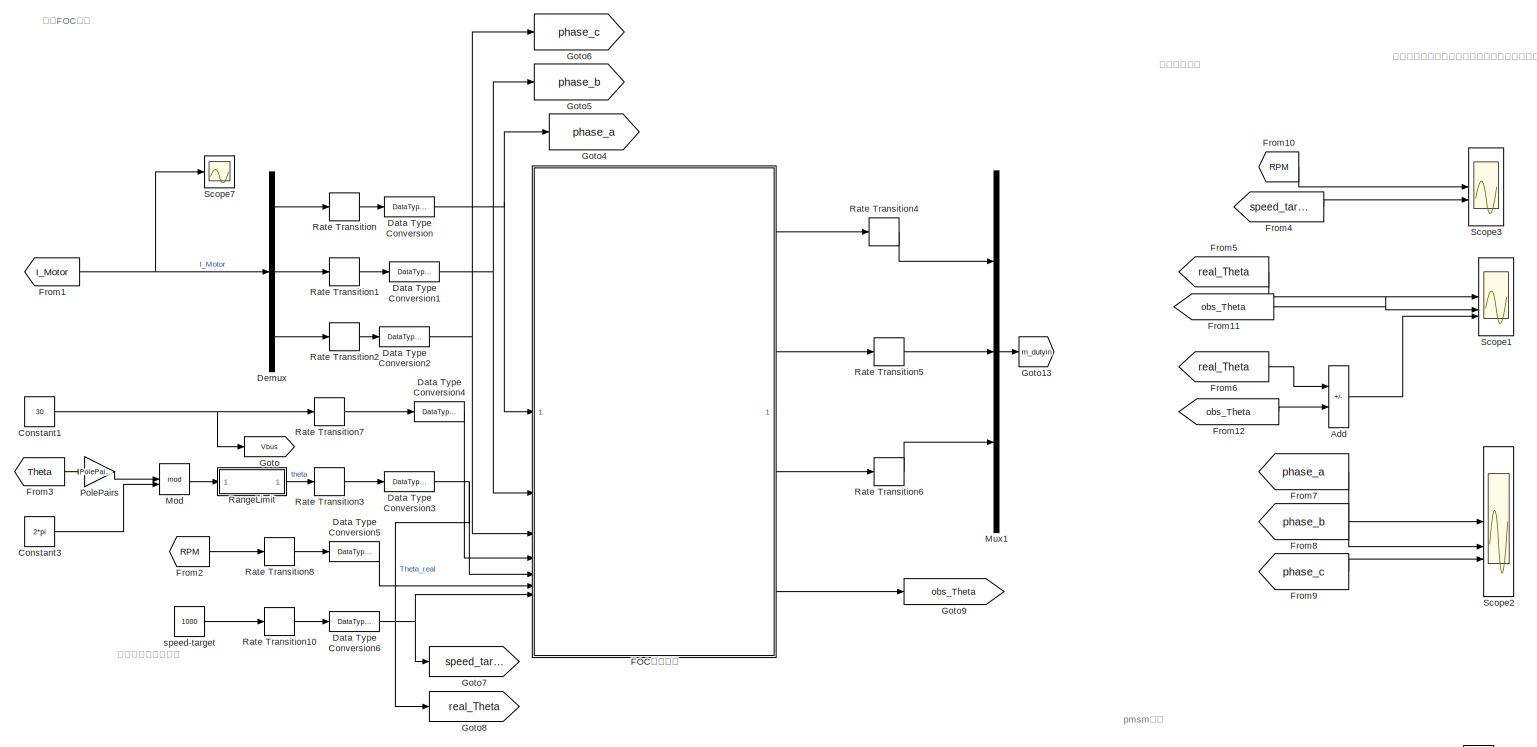
[diagram: root canvas - part 1/3, middle left region]
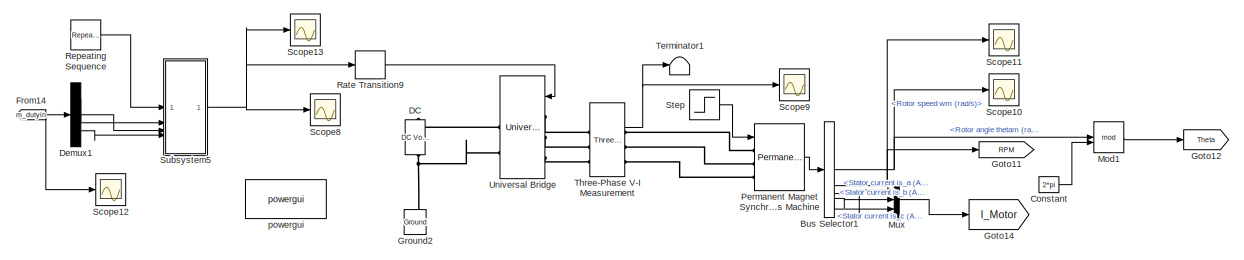
[diagram: root canvas - part 2/3, bottom right region]
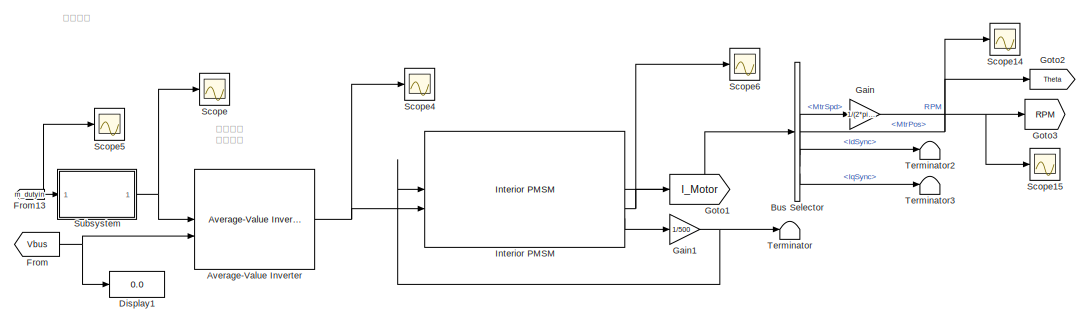
[diagram: root canvas - part 3/3, bottom left region]
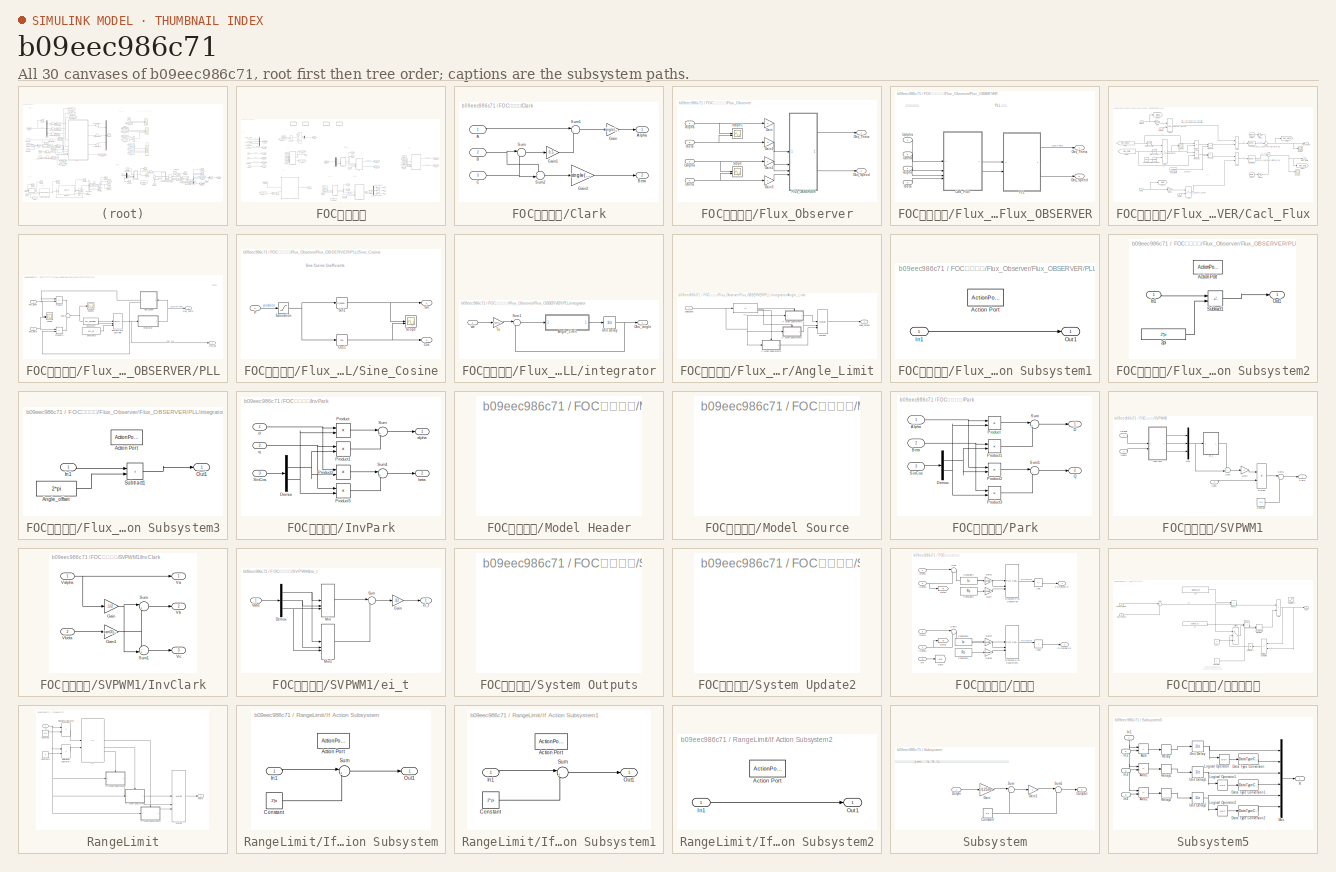
[diagram: thumbnail index - all 30 canvases of the model, root first then tree order]
MODEL slx_b09eec986c71
KIND model
CONFIG AbsTol = auto
CONFIG EnableMultiTasking = off
CONFIG FixedStep = Fixed_Step_Size
CONFIG InitFcn = Flux_Nonsensor_data_new\n\n
CONFIG MaxStep = auto
CONFIG MinStep = auto
CONFIG RelTol = 1e-3
CONFIG SampleTimeConstraint = Unconstrained
CONFIG SolverName = FixedStepAuto
CONFIG StartTime = 0.0
CONFIG StopTime = 10.0
BLOCK [Sum] Add
  IconShape = rectangular
  Inputs = +-
  OutDataTypeStr = single
BLOCK [Reference] Average-Value Inverter  REF=mcbplantlib/Average-Value Inverter
  Commented = on
  SourceBlock = mcbplantlib/Average-Value Inverter
  SourceType = Average Value Inverter
BLOCK [BusSelector] Bus Selector
  Commented = on
  OutputSignals = MtrPos,MtrSpd,IdSync,IqSync
BLOCK [BusSelector] Bus Selector1
  OutputSignals = Rotor angle thetam (rad),Rotor speed wm (rad/s),Stator current is_a (A),Stator current is_b (A),Stator current is_c (A)
BLOCK [Constant] Constant
  Value = 2*pi
BLOCK [Constant] Constant1
  SampleTime = TsBSP
  Value = 30
BLOCK [Constant] Constant3  
  SampleTime = TsBSP
  Value = 2*pi
BLOCK [Reference] DC   REF=spsDCVoltageSourceLib/DC Voltage Source
  LibrarySourceBlock = sps_lib/Sources/DC Voltage Source
  NameLocation = right
  SourceBlock = spsDCVoltageSourceLib/DC Voltage Source
  SourceType = DC Voltage Source
BLOCK [DataTypeConversion] Data Type Conversion
  OutDataTypeStr = single
  RndMeth = Floor
  SaturateOnIntegerOverflow = off
BLOCK [DataTypeConversion] Data Type Conversion1
  OutDataTypeStr = single
  RndMeth = Floor
  SaturateOnIntegerOverflow = off
BLOCK [DataTypeConversion] Data Type Conversion2
  OutDataTypeStr = single
  RndMeth = Floor
  SaturateOnIntegerOverflow = off
BLOCK [DataTypeConversion] Data Type Conversion3
  OutDataTypeStr = single
  RndMeth = Floor
  SaturateOnIntegerOverflow = off
BLOCK [DataTypeConversion] Data Type Conversion4
  OutDataTypeStr = single
  RndMeth = Floor
  SaturateOnIntegerOverflow = off
BLOCK [DataTypeConversion] Data Type Conversion5
  OutDataTypeStr = single
  RndMeth = Floor
  SaturateOnIntegerOverflow = off
BLOCK [DataTypeConversion] Data Type Conversion6
  OutDataTypeStr = single
  RndMeth = Floor
  SaturateOnIntegerOverflow = off
BLOCK [Demux] Demux
  Outputs = 3
BLOCK [Demux] Demux1
  Outputs = 3
BLOCK [Display] Display1
  Commented = on
  Decimation = 1
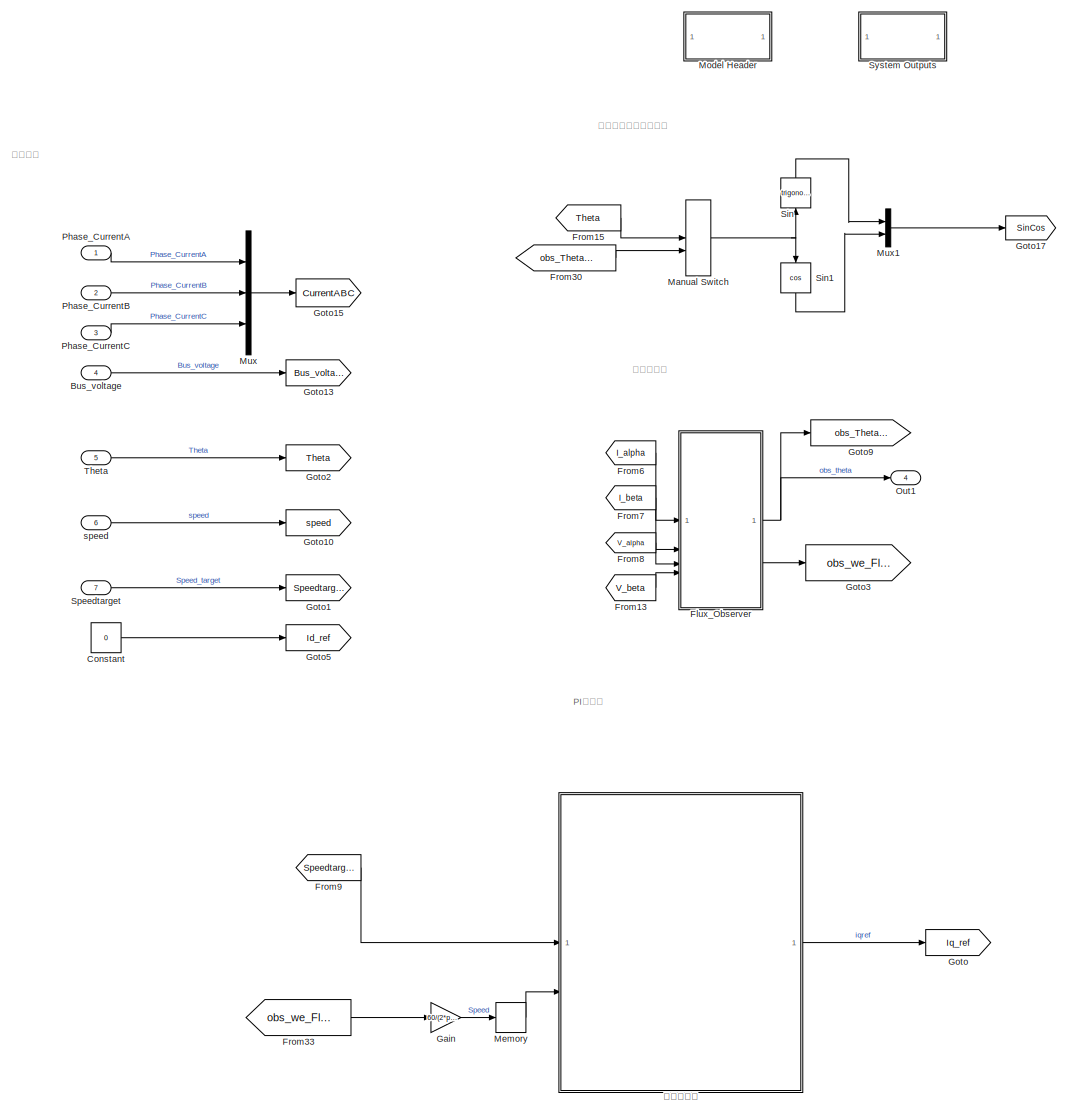
[diagram: FOC电机控制 - part 1/3, left side, full height]
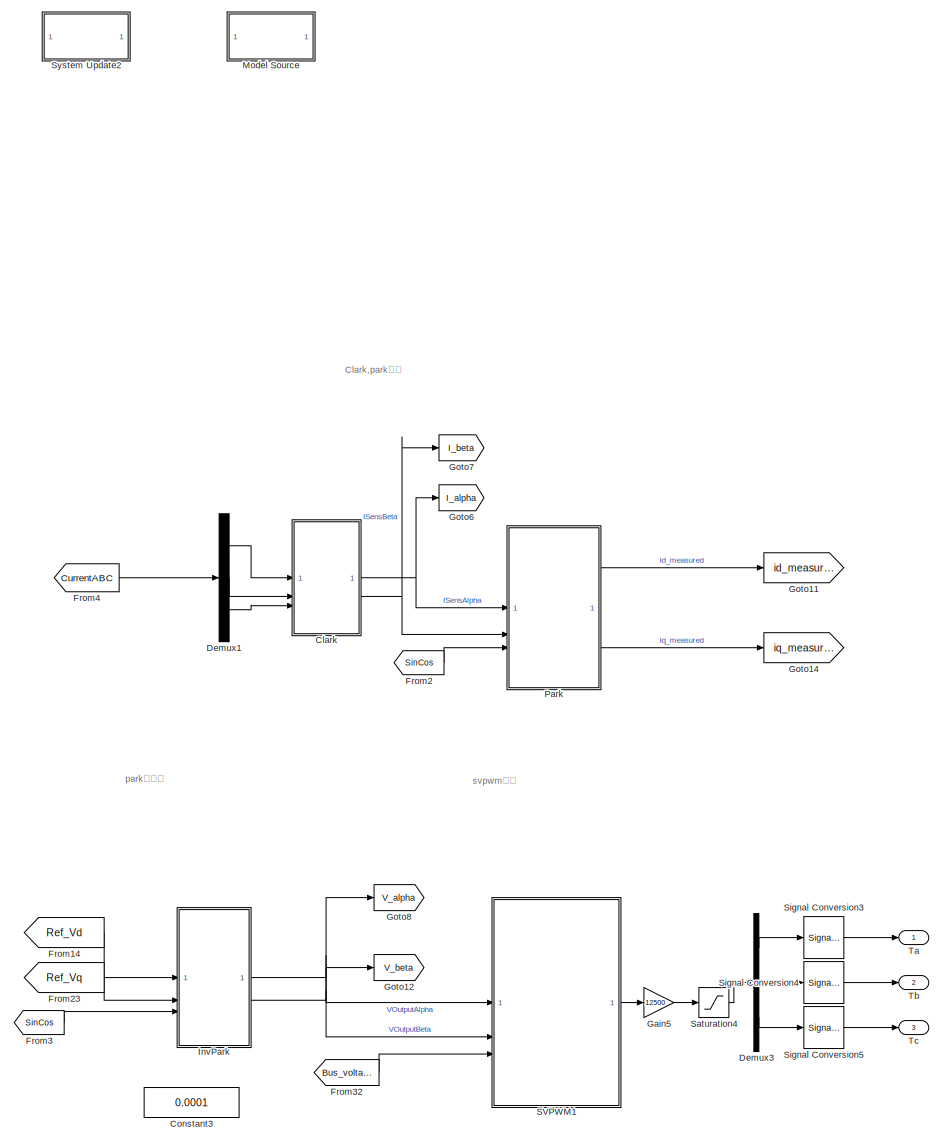
[diagram: FOC电机控制 - part 2/3, center side, full height]
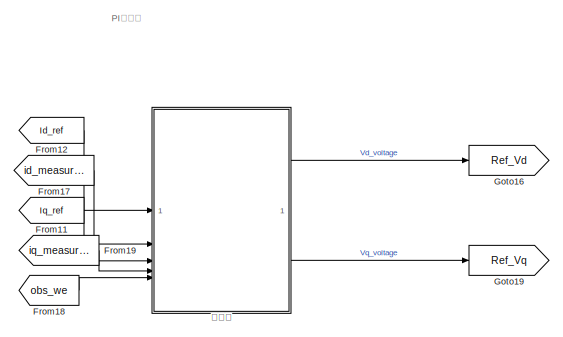
[diagram: FOC电机控制 - part 3/3, middle right region]
BLOCK [SubSystem] FOC电机控制
  SystemSampleTime = TsFOC
  TreatAsAtomicUnit = on
BLOCK [Inport] FOC电机控制/Bus_voltage
  Port = 4
BLOCK [SubSystem] FOC电机控制/Clark
  NameLocation = top
  RTWFcnNameOpts = Use subsystem name
  RTWSystemCode = Inline
  TreatAsAtomicUnit = on
BLOCK [Inport] FOC电机控制/Clark/A
  OutDataTypeStr = single
BLOCK [Outport] FOC电机控制/Clark/Alpha
  OutDataTypeStr = single
BLOCK [Inport] FOC电机控制/Clark/B
  OutDataTypeStr = single
  Port = 2
BLOCK [Outport] FOC电机控制/Clark/Beta
  OutDataTypeStr = single
  Port = 2
BLOCK [Inport] FOC电机控制/Clark/C
  OutDataTypeStr = single
  Port = 3
BLOCK [Gain] FOC电机控制/Clark/Gain
  Gain = single(2/3)
  OutDataTypeStr = single
BLOCK [Gain] FOC电机控制/Clark/Gain1
  Gain = 0.5
  OutDataTypeStr = single
BLOCK [Gain] FOC电机控制/Clark/Gain2
  Gain = single(sqrt(3)/3)
  OutDataTypeStr = single
BLOCK [Sum] FOC电机控制/Clark/Sum
  Inputs = |++
  OutDataTypeStr = single
BLOCK [Sum] FOC电机控制/Clark/Sum1
  Inputs = |+-
  OutDataTypeStr = single
BLOCK [Sum] FOC电机控制/Clark/Sum2
  Inputs = +-|
  OutDataTypeStr = single
BLOCK [Constant] FOC电机控制/Constant
  OutDataTypeStr = single
  Value = 0
BLOCK [Constant] FOC电机控制/Constant3
  OutDataTypeStr = single
  Value = 0.0001
BLOCK [Demux] FOC电机控制/Demux1
  Outputs = 3
BLOCK [Demux] FOC电机控制/Demux3
  Outputs = 3
BLOCK [SubSystem] FOC电机控制/Flux_Observer
  RTWSystemCode = Reusable function
BLOCK [SubSystem] FOC电机控制/Flux_Observer/Flux_OBSERVER
  RTWSystemCode = Reusable function
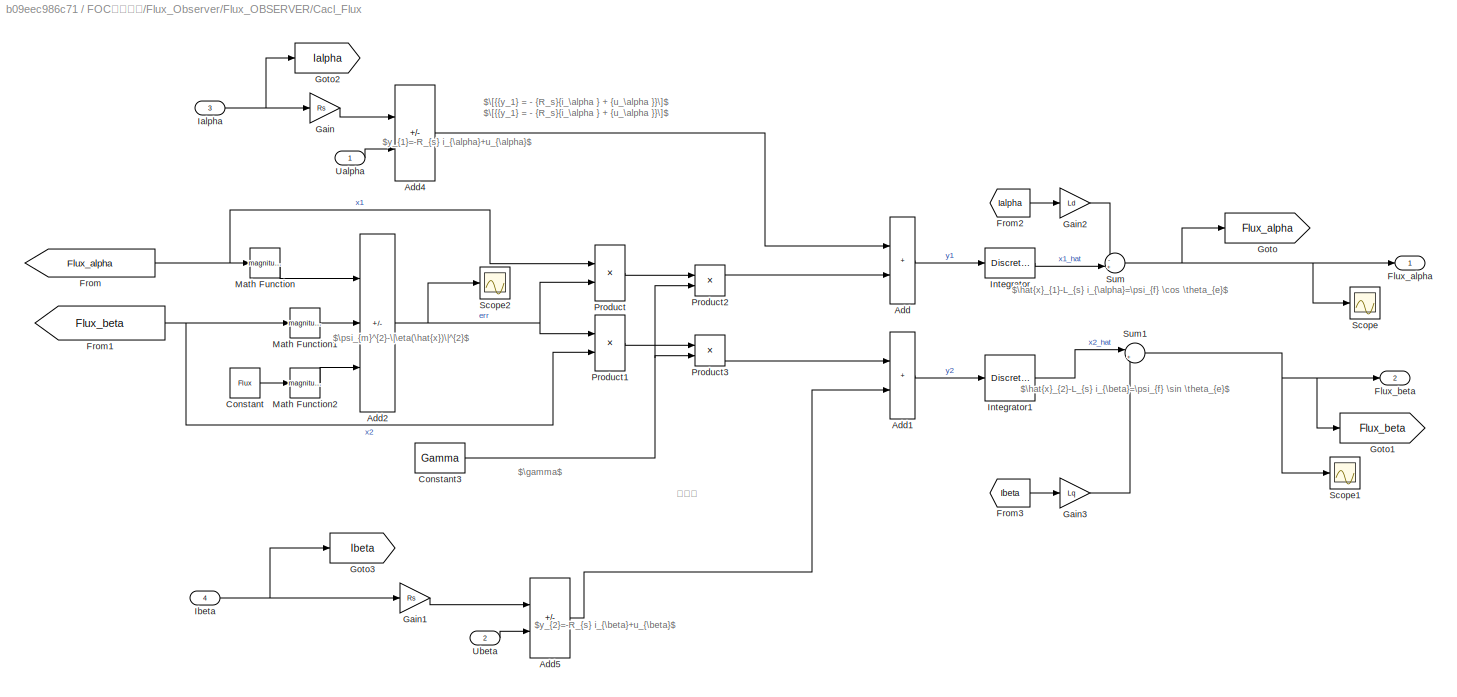
BLOCK [SubSystem] FOC电机控制/Flux_Observer/Flux_OBSERVER/Cacl_Flux
BLOCK [Sum] FOC电机控制/Flux_Observer/Flux_OBSERVER/Cacl_Flux/Add
  IconShape = rectangular
  OutDataTypeStr = single
BLOCK [Sum] FOC电机控制/Flux_Observer/Flux_OBSERVER/Cacl_Flux/Add1
  IconShape = rectangular
  OutDataTypeStr = single
BLOCK [Sum] FOC电机控制/Flux_Observer/Flux_OBSERVER/Cacl_Flux/Add2
  IconShape = rectangular
  Inputs = --+
  OutDataTypeStr = single
BLOCK [Sum] FOC电机控制/Flux_Observer/Flux_OBSERVER/Cacl_Flux/Add4
  IconShape = rectangular
  Inputs = -+
  OutDataTypeStr = single
BLOCK [Sum] FOC电机控制/Flux_Observer/Flux_OBSERVER/Cacl_Flux/Add5
  IconShape = rectangular
  Inputs = -+
  OutDataTypeStr = single
BLOCK [Constant] FOC电机控制/Flux_Observer/Flux_OBSERVER/Cacl_Flux/Constant
  OutDataTypeStr = single
  Value = Flux
BLOCK [Constant] FOC电机控制/Flux_Observer/Flux_OBSERVER/Cacl_Flux/Constant3
  OutDataTypeStr = single
  Value = Gamma
BLOCK [Outport] FOC电机控制/Flux_Observer/Flux_OBSERVER/Cacl_Flux/Flux_alpha
  OutDataTypeStr = single
BLOCK [Outport] FOC电机控制/Flux_Observer/Flux_OBSERVER/Cacl_Flux/Flux_beta
  OutDataTypeStr = single
  Port = 2
BLOCK [From] FOC电机控制/Flux_Observer/Flux_OBSERVER/Cacl_Flux/From
  GotoTag = Flux_alpha
BLOCK [From] FOC电机控制/Flux_Observer/Flux_OBSERVER/Cacl_Flux/From1
  GotoTag = Flux_beta
BLOCK [From] FOC电机控制/Flux_Observer/Flux_OBSERVER/Cacl_Flux/From2
  GotoTag = Ialpha
BLOCK [From] FOC电机控制/Flux_Observer/Flux_OBSERVER/Cacl_Flux/From3
  GotoTag = Ibeta
BLOCK [Gain] FOC电机控制/Flux_Observer/Flux_OBSERVER/Cacl_Flux/Gain
  Gain = Rs
BLOCK [Gain] FOC电机控制/Flux_Observer/Flux_OBSERVER/Cacl_Flux/Gain1
  Gain = Rs
BLOCK [Gain] FOC电机控制/Flux_Observer/Flux_OBSERVER/Cacl_Flux/Gain2
  Gain = Ld
  OutDataTypeStr = single
BLOCK [Gain] FOC电机控制/Flux_Observer/Flux_OBSERVER/Cacl_Flux/Gain3
  Gain = Lq
  OutDataTypeStr = single
BLOCK [Goto] FOC电机控制/Flux_Observer/Flux_OBSERVER/Cacl_Flux/Goto
  GotoTag = Flux_alpha
BLOCK [Goto] FOC电机控制/Flux_Observer/Flux_OBSERVER/Cacl_Flux/Goto1
  GotoTag = Flux_beta
BLOCK [Goto] FOC电机控制/Flux_Observer/Flux_OBSERVER/Cacl_Flux/Goto2
  GotoTag = Ialpha
BLOCK [Goto] FOC电机控制/Flux_Observer/Flux_OBSERVER/Cacl_Flux/Goto3
  GotoTag = Ibeta
BLOCK [Inport] FOC电机控制/Flux_Observer/Flux_OBSERVER/Cacl_Flux/Ialpha
  OutDataTypeStr = single
  Port = 3
BLOCK [Inport] FOC电机控制/Flux_Observer/Flux_OBSERVER/Cacl_Flux/Ibeta
  OutDataTypeStr = single
  Port = 4
BLOCK [DiscreteIntegrator] FOC电机控制/Flux_Observer/Flux_OBSERVER/Cacl_Flux/Integrator
  ICPrevOutput = DiscIntNeverNeededParam
  ICPrevScaledInput = DiscIntNeverNeededParam
  OutDataTypeStr = single
  SampleTime = -1
BLOCK [DiscreteIntegrator] FOC电机控制/Flux_Observer/Flux_OBSERVER/Cacl_Flux/Integrator1
  ICPrevOutput = DiscIntNeverNeededParam
  ICPrevScaledInput = DiscIntNeverNeededParam
  OutDataTypeStr = single
  SampleTime = -1
BLOCK [Math] FOC电机控制/Flux_Observer/Flux_OBSERVER/Cacl_Flux/Math Function
  Operator = magnitude^2
  OutDataTypeStr = single
BLOCK [Math] FOC电机控制/Flux_Observer/Flux_OBSERVER/Cacl_Flux/Math Function1
  Operator = magnitude^2
  OutDataTypeStr = single
BLOCK [Math] FOC电机控制/Flux_Observer/Flux_OBSERVER/Cacl_Flux/Math Function2
  Operator = magnitude^2
  OutDataTypeStr = single
BLOCK [Product] FOC电机控制/Flux_Observer/Flux_OBSERVER/Cacl_Flux/Product
  OutDataTypeStr = single
BLOCK [Product] FOC电机控制/Flux_Observer/Flux_OBSERVER/Cacl_Flux/Product1
  OutDataTypeStr = single
BLOCK [Product] FOC电机控制/Flux_Observer/Flux_OBSERVER/Cacl_Flux/Product2
  OutDataTypeStr = single
BLOCK [Product] FOC电机控制/Flux_Observer/Flux_OBSERVER/Cacl_Flux/Product3
  OutDataTypeStr = single
BLOCK [Scope] FOC电机控制/Flux_Observer/Flux_OBSERVER/Cacl_Flux/Scope
  Floating = off
  NumInputPorts = 1
  ScopeSpecificationString = Simulink.scopes.TimeScopeBlockCfg('CurrentConfiguration', extmgr.ConfigurationSet(extmgr.Configuration('Core','General UI',true),extmgr.Configuration('Core','Source UI',true),extmgr.Configuration('Sources','WiredSimulink',true,'DataLoggingVariableName','ScopeData1','DataLoggingSaveFormat','Array','DataLoggingLimitDataPoints',true,'DataLoggingDecimation','1'),extmgr.Configuration('Visuals','Time Do...<+1756ch>
BLOCK [Scope] FOC电机控制/Flux_Observer/Flux_OBSERVER/Cacl_Flux/Scope1
  Floating = off
  NumInputPorts = 1
  ScopeSpecificationString = Simulink.scopes.TimeScopeBlockCfg('CurrentConfiguration', extmgr.ConfigurationSet(extmgr.Configuration('Core','General UI',true),extmgr.Configuration('Core','Source UI',true),extmgr.Configuration('Sources','WiredSimulink',true,'DataLoggingVariableName','ScopeData2','DataLoggingSaveFormat','Array','DataLoggingLimitDataPoints',true,'DataLoggingDecimation','1'),extmgr.Configuration('Visuals','Time Do...<+1748ch>
BLOCK [Scope] FOC电机控制/Flux_Observer/Flux_OBSERVER/Cacl_Flux/Scope2
  Floating = off
  NumInputPorts = 1
  ScopeSpecificationString = Simulink.scopes.TimeScopeBlockCfg('CurrentConfiguration', extmgr.ConfigurationSet(extmgr.Configuration('Core','General UI',true),extmgr.Configuration('Core','Source UI',true),extmgr.Configuration('Sources','WiredSimulink',true,'DataLoggingVariableName','ScopeData1'),extmgr.Configuration('Visuals','Time Domain',true,'SerializedDisplays',{struct('MinYLimReal','-0.00118','MaxYLimReal','0.00051','YLab...<+1537ch>
BLOCK [Sum] FOC电机控制/Flux_Observer/Flux_OBSERVER/Cacl_Flux/Sum
  Inputs = -+|
  OutDataTypeStr = single
BLOCK [Sum] FOC电机控制/Flux_Observer/Flux_OBSERVER/Cacl_Flux/Sum1
  Inputs = |+-
  OutDataTypeStr = single
BLOCK [Inport] FOC电机控制/Flux_Observer/Flux_OBSERVER/Cacl_Flux/Ualpha
  OutDataTypeStr = single
BLOCK [Inport] FOC电机控制/Flux_Observer/Flux_OBSERVER/Cacl_Flux/Ubeta
  OutDataTypeStr = single
  Port = 2
BLOCK [Inport] FOC电机控制/Flux_Observer/Flux_OBSERVER/Ialpha
  OutDataTypeStr = single
BLOCK [Inport] FOC电机控制/Flux_Observer/Flux_OBSERVER/Ibeta
  OutDataTypeStr = single
  Port = 2
BLOCK [Outport] FOC电机控制/Flux_Observer/Flux_OBSERVER/Obs_Speed
  Port = 2
BLOCK [Outport] FOC电机控制/Flux_Observer/Flux_OBSERVER/Obs_Theta
BLOCK [SubSystem] FOC电机控制/Flux_Observer/Flux_OBSERVER/PLL
BLOCK [Constant] FOC电机控制/Flux_Observer/Flux_OBSERVER/PLL/Constant2
  OutDataTypeStr = single
  Value = pll_omega
BLOCK [Constant] FOC电机控制/Flux_Observer/Flux_OBSERVER/PLL/Constant3
  OutDataTypeStr = single
  Value = pll_xi
BLOCK [Reference] FOC电机控制/Flux_Observer/Flux_OBSERVER/PLL/Discrete PID Controller  REF=slpidlib/PID Controller
  SourceBlock = slpidlib/PID Controller
  SourceType = PID 1dof
BLOCK [Inport] FOC电机控制/Flux_Observer/Flux_OBSERVER/PLL/Flux_alpha
  OutDataTypeStr = single
BLOCK [Inport] FOC电机控制/Flux_Observer/Flux_OBSERVER/PLL/Flux_beta
  OutDataTypeStr = single
  Port = 2
BLOCK [Outport] FOC电机控制/Flux_Observer/Flux_OBSERVER/PLL/Obs_Theta
  OutDataTypeStr = single
BLOCK [Outport] FOC电机控制/Flux_Observer/Flux_OBSERVER/PLL/Obs_we
  OutDataTypeStr = single
  Port = 2
BLOCK [Product] FOC电机控制/Flux_Observer/Flux_OBSERVER/PLL/Product
  OutDataTypeStr = single
BLOCK [Product] FOC电机控制/Flux_Observer/Flux_OBSERVER/PLL/Product1
  OutDataTypeStr = single
BLOCK [Scope] FOC电机控制/Flux_Observer/Flux_OBSERVER/PLL/Scope
  Floating = off
  NumInputPorts = 2
  ScopeSpecificationString = Simulink.scopes.TimeScopeBlockCfg('CurrentConfiguration', extmgr.ConfigurationSet(extmgr.Configuration('Core','General UI',true),extmgr.Configuration('Core','Source UI',true),extmgr.Configuration('Sources','WiredSimulink',true,'DataLoggingVariableName','ScopeData1'),extmgr.Configuration('Visuals','Time Domain',true,'SerializedDisplays',{struct('MinYLimReal','-0.04331','MaxYLimReal','0.02527','YLab...<+1596ch>
BLOCK [Scope] FOC电机控制/Flux_Observer/Flux_OBSERVER/PLL/Scope1
  Floating = off
  NumInputPorts = 1
  ScopeSpecificationString = Simulink.scopes.TimeScopeBlockCfg('CurrentConfiguration', extmgr.ConfigurationSet(extmgr.Configuration('Core','General UI',true),extmgr.Configuration('Core','Source UI',true),extmgr.Configuration('Sources','WiredSimulink',true,'DataLoggingVariableName','ScopeData1'),extmgr.Configuration('Visuals','Time Domain',true,'SerializedDisplays',{struct('MinYLimReal','-0.01591','MaxYLimReal','0.0159','YLabe...<+1575ch>
BLOCK [SubSystem] FOC电机控制/Flux_Observer/Flux_OBSERVER/PLL/Sine_Cosine
  RTWFcnNameOpts = Use subsystem name
  RTWSystemCode = Nonreusable function
  TreatAsAtomicUnit = on
BLOCK [Outport] FOC电机控制/Flux_Observer/Flux_OBSERVER/PLL/Sine_Cosine/Cos
  Port = 2
  VectorParamsAs1DForOutWhenUnconnected = off
BLOCK [Trigonometry] FOC电机控制/Flux_Observer/Flux_OBSERVER/PLL/Sine_Cosine/Cos1
  Operator = cos
BLOCK [Inport] FOC电机控制/Flux_Observer/Flux_OBSERVER/PLL/Sine_Cosine/P
  OutDataTypeStr = single
BLOCK [Saturate] FOC电机控制/Flux_Observer/Flux_OBSERVER/PLL/Sine_Cosine/Saturation
  LowerLimit = 0+0.001
  OutDataTypeStr = single
  UpperLimit = 2*pi-0.001
BLOCK [Scope] FOC电机控制/Flux_Observer/Flux_OBSERVER/PLL/Sine_Cosine/Scope
  Floating = off
  NumInputPorts = 2
  ScopeSpecificationString = Simulink.scopes.TimeScopeBlockCfg('CurrentConfiguration', extmgr.ConfigurationSet(extmgr.Configuration('Core','General UI',true),extmgr.Configuration('Core','Source UI',true),extmgr.Configuration('Sources','WiredSimulink',true,'DataLoggingVariableName','ScopeData3'),extmgr.Configuration('Visuals','Time Domain',true,'SerializedDisplays',{struct('MinYLimReal','-1.25','MaxYLimReal','1.25','YLabelReal...<+1425ch>
BLOCK [Outport] FOC电机控制/Flux_Observer/Flux_OBSERVER/PLL/Sine_Cosine/Sin
  VectorParamsAs1DForOutWhenUnconnected = off
BLOCK [Trigonometry] FOC电机控制/Flux_Observer/Flux_OBSERVER/PLL/Sine_Cosine/Sin1
BLOCK [Sum] FOC电机控制/Flux_Observer/Flux_OBSERVER/PLL/Sum
  Inputs = -|+
  OutDataTypeStr = single
BLOCK [SubSystem] FOC电机控制/Flux_Observer/Flux_OBSERVER/PLL/integrator
BLOCK [SubSystem] FOC电机控制/Flux_Observer/Flux_OBSERVER/PLL/integrator/Angle_Limit
BLOCK [Inport] FOC电机控制/Flux_Observer/Flux_OBSERVER/PLL/integrator/Angle_Limit/Angle_input
BLOCK [Outport] FOC电机控制/Flux_Observer/Flux_OBSERVER/PLL/integrator/Angle_Limit/Angle_output
BLOCK [SubSystem] FOC电机控制/Flux_Observer/Flux_OBSERVER/PLL/integrator/Angle_Limit/If Action Subsystem1
  TreatAsAtomicUnit = on
BLOCK [ActionPort] FOC电机控制/Flux_Observer/Flux_OBSERVER/PLL/integrator/Angle_Limit/If Action Subsystem1/Action Port
  ActionPortLabel = else
BLOCK [Inport] FOC电机控制/Flux_Observer/Flux_OBSERVER/PLL/integrator/Angle_Limit/If Action Subsystem1/In1
BLOCK [Outport] FOC电机控制/Flux_Observer/Flux_OBSERVER/PLL/integrator/Angle_Limit/If Action Subsystem1/Out1
BLOCK [SubSystem] FOC电机控制/Flux_Observer/Flux_OBSERVER/PLL/integrator/Angle_Limit/If Action Subsystem2
  TreatAsAtomicUnit = on
BLOCK [Constant] FOC电机控制/Flux_Observer/Flux_OBSERVER/PLL/integrator/Angle_Limit/If Action Subsystem2/2pi
  OutDataTypeStr = single
  Value = 2*pi
BLOCK [ActionPort] FOC电机控制/Flux_Observer/Flux_OBSERVER/PLL/integrator/Angle_Limit/If Action Subsystem2/Action Port
  ActionPortLabel = if(u1 > 6.283185307)
BLOCK [Inport] FOC电机控制/Flux_Observer/Flux_OBSERVER/PLL/integrator/Angle_Limit/If Action Subsystem2/In1
BLOCK [Outport] FOC电机控制/Flux_Observer/Flux_OBSERVER/PLL/integrator/Angle_Limit/If Action Subsystem2/Out1
BLOCK [Sum] FOC电机控制/Flux_Observer/Flux_OBSERVER/PLL/integrator/Angle_Limit/If Action Subsystem2/Subtract1
  IconShape = rectangular
  Inputs = +-
  OutDataTypeStr = single
BLOCK [SubSystem] FOC电机控制/Flux_Observer/Flux_OBSERVER/PLL/integrator/Angle_Limit/If Action Subsystem3
  TreatAsAtomicUnit = on
BLOCK [ActionPort] FOC电机控制/Flux_Observer/Flux_OBSERVER/PLL/integrator/Angle_Limit/If Action Subsystem3/Action Port
  ActionPortLabel = elseif(u1<0)
BLOCK [Constant] FOC电机控制/Flux_Observer/Flux_OBSERVER/PLL/integrator/Angle_Limit/If Action Subsystem3/Angle_offset
  OutDataTypeStr = single
  Value = 2*pi
BLOCK [Inport] FOC电机控制/Flux_Observer/Flux_OBSERVER/PLL/integrator/Angle_Limit/If Action Subsystem3/In1
BLOCK [Outport] FOC电机控制/Flux_Observer/Flux_OBSERVER/PLL/integrator/Angle_Limit/If Action Subsystem3/Out1
BLOCK [Sum] FOC电机控制/Flux_Observer/Flux_OBSERVER/PLL/integrator/Angle_Limit/If Action Subsystem3/Subtract1
  IconShape = rectangular
BLOCK [If] FOC电机控制/Flux_Observer/Flux_OBSERVER/PLL/integrator/Angle_Limit/If1
  ElseIfExpressions = u1<0
  IfExpression = u1 > 6.283185307
BLOCK [Merge] FOC电机控制/Flux_Observer/Flux_OBSERVER/PLL/integrator/Angle_Limit/Merge1
  Inputs = 3
BLOCK [Outport] FOC电机控制/Flux_Observer/Flux_OBSERVER/PLL/integrator/Obs_angle
  OutDataTypeStr = single
BLOCK [Sum] FOC电机控制/Flux_Observer/Flux_OBSERVER/PLL/integrator/Sum1
  Inputs = |++
  OutDataTypeStr = single
BLOCK [Gain] FOC电机控制/Flux_Observer/Flux_OBSERVER/PLL/integrator/Ts
  Gain = TsFOC
  OutDataTypeStr = single
BLOCK [UnitDelay] FOC电机控制/Flux_Observer/Flux_OBSERVER/PLL/integrator/Unit Delay
  HasFrameUpgradeWarning = on
  SampleTime = -1
BLOCK [Inport] FOC电机控制/Flux_Observer/Flux_OBSERVER/PLL/integrator/we
  OutDataTypeStr = single
BLOCK [Inport] FOC电机控制/Flux_Observer/Flux_OBSERVER/Ualpha
  OutDataTypeStr = single
  Port = 3
BLOCK [Inport] FOC电机控制/Flux_Observer/Flux_OBSERVER/Ubeta
  OutDataTypeStr = single
  Port = 4
BLOCK [Gain] FOC电机控制/Flux_Observer/Gain
BLOCK [Gain] FOC电机控制/Flux_Observer/Gain1
BLOCK [Gain] FOC电机控制/Flux_Observer/Gain2
BLOCK [Gain] FOC电机控制/Flux_Observer/Gain3
BLOCK [Inport] FOC电机控制/Flux_Observer/Ialpha
  OutDataTypeStr = single
BLOCK [Inport] FOC电机控制/Flux_Observer/Ibeta
  OutDataTypeStr = single
  Port = 2
BLOCK [Outport] FOC电机控制/Flux_Observer/Obs_Speed
  Port = 2
BLOCK [Outport] FOC电机控制/Flux_Observer/Obs_Theta
BLOCK [Scope] FOC电机控制/Flux_Observer/Scope
  Floating = off
  NumInputPorts = 2
  ScopeSpecificationString = Simulink.scopes.TimeScopeBlockCfg('CurrentConfiguration', extmgr.ConfigurationSet(extmgr.Configuration('Core','General UI',true),extmgr.Configuration('Core','Source UI',true),extmgr.Configuration('Sources','WiredSimulink',true,'DataLoggingVariableName','ScopeData2'),extmgr.Configuration('Visuals','Time Domain',true,'SerializedDisplays',{struct('MinYLimReal','-7.41364','MaxYLimReal','7.55906','YLab...<+1533ch>
BLOCK [Scope] FOC电机控制/Flux_Observer/Scope1
  Floating = off
  NumInputPorts = 2
  ScopeSpecificationString = Simulink.scopes.TimeScopeBlockCfg('CurrentConfiguration', extmgr.ConfigurationSet(extmgr.Configuration('Core','General UI',true),extmgr.Configuration('Core','Source UI',true),extmgr.Configuration('Sources','WiredSimulink',true,'DataLoggingVariableName','ScopeData3'),extmgr.Configuration('Visuals','Time Domain',true,'SerializedDisplays',{struct('MinYLimReal','-16.75847','MaxYLimReal','18.10642','YL...<+1566ch>
BLOCK [Inport] FOC电机控制/Flux_Observer/Ualpha
  OutDataTypeStr = single
  Port = 3
BLOCK [Inport] FOC电机控制/Flux_Observer/Ubeta
  OutDataTypeStr = single
  Port = 4
BLOCK [From] FOC电机控制/From11
  GotoTag = Iq_ref
BLOCK [From] FOC电机控制/From12
  GotoTag = Id_ref
BLOCK [From] FOC电机控制/From13
  GotoTag = V_beta
BLOCK [From] FOC电机控制/From14
  GotoTag = Ref_Vd
BLOCK [From] FOC电机控制/From15
  GotoTag = Theta
BLOCK [From] FOC电机控制/From17
  GotoTag = id_measured
BLOCK [From] FOC电机控制/From18
  GotoTag = obs_we
BLOCK [From] FOC电机控制/From19
  GotoTag = iq_measured
BLOCK [From] FOC电机控制/From2
  GotoTag = SinCos
BLOCK [From] FOC电机控制/From23
  GotoTag = Ref_Vq
BLOCK [From] FOC电机控制/From3
  GotoTag = SinCos
BLOCK [From] FOC电机控制/From30
  GotoTag = obs_Theta_Flux
BLOCK [From] FOC电机控制/From32
  GotoTag = Bus_voltage
BLOCK [From] FOC电机控制/From33
  GotoTag = obs_we_Flux
BLOCK [From] FOC电机控制/From4
  GotoTag = CurrentABC
BLOCK [From] FOC电机控制/From6
  GotoTag = I_alpha
BLOCK [From] FOC电机控制/From7
  GotoTag = I_beta
BLOCK [From] FOC电机控制/From8
  GotoTag = V_alpha
BLOCK [From] FOC电机控制/From9
  GotoTag = Speedtarget
BLOCK [Gain] FOC电机控制/Gain
  Gain = 60/(2*pi)/PolePairs
BLOCK [Gain] FOC电机控制/Gain5
  Gain = 12500
BLOCK [Goto] FOC电机控制/Goto
  GotoTag = Iq_ref
BLOCK [Goto] FOC电机控制/Goto1
  GotoTag = Speedtarget
BLOCK [Goto] FOC电机控制/Goto10
  GotoTag = speed
BLOCK [Goto] FOC电机控制/Goto11
  GotoTag = id_measured
BLOCK [Goto] FOC电机控制/Goto12
  GotoTag = V_beta
BLOCK [Goto] FOC电机控制/Goto13
  GotoTag = Bus_voltage
BLOCK [Goto] FOC电机控制/Goto14
  GotoTag = iq_measured
BLOCK [Goto] FOC电机控制/Goto15
  GotoTag = CurrentABC
BLOCK [Goto] FOC电机控制/Goto16
  GotoTag = Ref_Vd
BLOCK [Goto] FOC电机控制/Goto17
  GotoTag = SinCos
BLOCK [Goto] FOC电机控制/Goto19
  GotoTag = Ref_Vq
BLOCK [Goto] FOC电机控制/Goto2
  GotoTag = Theta
BLOCK [Goto] FOC电机控制/Goto3
  GotoTag = obs_we_Flux
BLOCK [Goto] FOC电机控制/Goto5
  GotoTag = Id_ref
BLOCK [Goto] FOC电机控制/Goto6
  GotoTag = I_alpha
BLOCK [Goto] FOC电机控制/Goto7
  GotoTag = I_beta
BLOCK [Goto] FOC电机控制/Goto8
  GotoTag = V_alpha
BLOCK [Goto] FOC电机控制/Goto9
  GotoTag = obs_Theta_Flux
BLOCK [SubSystem] FOC电机控制/InvPark
  RTWFcnNameOpts = Use subsystem name
  RTWSystemCode = Reusable function
  TreatAsAtomicUnit = on
BLOCK [Demux] FOC电机控制/InvPark/Demux
  Outputs = 2
BLOCK [Product] FOC电机控制/InvPark/Product
  OutDataTypeStr = single
BLOCK [Product] FOC电机控制/InvPark/Product1
  OutDataTypeStr = single
BLOCK [Product] FOC电机控制/InvPark/Product2
  OutDataTypeStr = single
BLOCK [Product] FOC电机控制/InvPark/Product3
  OutDataTypeStr = single
BLOCK [Inport] FOC电机控制/InvPark/SinCos
  OutDataTypeStr = single
  Port = 3
BLOCK [Sum] FOC电机控制/InvPark/Sum
  Inputs = |+-
  OutDataTypeStr = single
BLOCK [Sum] FOC电机控制/InvPark/Sum1
  Inputs = |++
  OutDataTypeStr = single
BLOCK [Outport] FOC电机控制/InvPark/alpha
  OutDataTypeStr = single
BLOCK [Outport] FOC电机控制/InvPark/beta
  OutDataTypeStr = single
  Port = 2
BLOCK [Inport] FOC电机控制/InvPark/d
  OutDataTypeStr = single
BLOCK [Inport] FOC电机控制/InvPark/q
  OutDataTypeStr = single
  Port = 2
BLOCK [ManualSwitch] FOC电机控制/Manual Switch
BLOCK [Memory] FOC电机控制/Memory
  InheritSampleTime = on
  NameLocation = top
BLOCK [SubSystem] FOC电机控制/Model Header
  CopyFcn = cccopyfcn(gcb)
  OpenFcn = ccopenfcn('Model Header')
BLOCK [SubSystem] FOC电机控制/Model Source
  CopyFcn = cccopyfcn(gcb)
  OpenFcn = ccopenfcn('Model Source')
BLOCK [Mux] FOC电机控制/Mux
  DisplayOption = bar
  Inputs = 3
BLOCK [Mux] FOC电机控制/Mux1
  DisplayOption = bar
  Inputs = 2
BLOCK [Outport] FOC电机控制/Out1
  OutDataTypeStr = single
  Port = 4
BLOCK [SubSystem] FOC电机控制/Park
  NameLocation = top
  RTWFcnNameOpts = Use subsystem name
  RTWSystemCode = Reusable function
  TreatAsAtomicUnit = on
BLOCK [Inport] FOC电机控制/Park/Alpha
  OutDataTypeStr = single
BLOCK [Inport] FOC电机控制/Park/Beta
  OutDataTypeStr = single
  Port = 2
BLOCK [Outport] FOC电机控制/Park/D
  OutDataTypeStr = single
BLOCK [Demux] FOC电机控制/Park/Demux
  Outputs = 2
BLOCK [Product] FOC电机控制/Park/Product
  OutDataTypeStr = single
BLOCK [Product] FOC电机控制/Park/Product1
  OutDataTypeStr = single
BLOCK [Product] FOC电机控制/Park/Product2
  OutDataTypeStr = single
BLOCK [Product] FOC电机控制/Park/Product3
  OutDataTypeStr = single
BLOCK [Outport] FOC电机控制/Park/Q
  OutDataTypeStr = single
  Port = 2
BLOCK [Inport] FOC电机控制/Park/SinCos
  OutDataTypeStr = single
  Port = 3
BLOCK [Sum] FOC电机控制/Park/Sum
  Inputs = |++
  OutDataTypeStr = single
BLOCK [Sum] FOC电机控制/Park/Sum1
  Inputs = |-+
  OutDataTypeStr = single
BLOCK [Inport] FOC电机控制/Phase_CurrentA
BLOCK [Inport] FOC电机控制/Phase_CurrentB
  Port = 2
BLOCK [Inport] FOC电机控制/Phase_CurrentC
  Port = 3
BLOCK [SubSystem] FOC电机控制/SVPWM1
  RTWSystemCode = Reusable function
  TreatAsAtomicUnit = on
BLOCK [Constant] FOC电机控制/SVPWM1/Constant
  OutDataTypeStr = single
  Value = 0.5
BLOCK [Product] FOC电机控制/SVPWM1/Divide
  Inputs = */
  OutDataTypeStr = single
BLOCK [Gain] FOC电机控制/SVPWM1/Gain
  Gain = -1
  OutDataTypeStr = single
BLOCK [SubSystem] FOC电机控制/SVPWM1/InvClark
BLOCK [Gain] FOC电机控制/SVPWM1/InvClark/Gain
  Gain = -1/2
  OutDataTypeStr = single
BLOCK [Gain] FOC电机控制/SVPWM1/InvClark/Gain1
  Gain = sqrt(3)/2
  OutDataTypeStr = single
BLOCK [Sum] FOC电机控制/SVPWM1/InvClark/Sum
  Inputs = |++
  OutDataTypeStr = single
BLOCK [Sum] FOC电机控制/SVPWM1/InvClark/Sum1
  Inputs = -+|
  OutDataTypeStr = single
BLOCK [Outport] FOC电机控制/SVPWM1/InvClark/Va
  OutDataTypeStr = single
BLOCK [Inport] FOC电机控制/SVPWM1/InvClark/Valpha
  OutDataTypeStr = single
BLOCK [Outport] FOC电机控制/SVPWM1/InvClark/Vb
  OutDataTypeStr = single
  Port = 2
BLOCK [Inport] FOC电机控制/SVPWM1/InvClark/Vbeta
  OutDataTypeStr = single
  Port = 2
BLOCK [Outport] FOC电机控制/SVPWM1/InvClark/Vc
  OutDataTypeStr = single
  Port = 3
BLOCK [Mux] FOC电机控制/SVPWM1/Mux
  DisplayOption = bar
  Inputs = 3
BLOCK [Sum] FOC电机控制/SVPWM1/Sum
  Inputs = ++|
  OutDataTypeStr = single
BLOCK [Sum] FOC电机控制/SVPWM1/Sum1
  Inputs = |++
  OutDataTypeStr = single
BLOCK [Inport] FOC电机控制/SVPWM1/Valpha
  OutDataTypeStr = single
BLOCK [Inport] FOC电机控制/SVPWM1/Vbeta
  OutDataTypeStr = single
  Port = 2
BLOCK [SubSystem] FOC电机控制/SVPWM1/ei_t
BLOCK [Demux] FOC电机控制/SVPWM1/ei_t/Demux
  Outputs = 3
BLOCK [Gain] FOC电机控制/SVPWM1/ei_t/Gain
  Gain = -1/2
  OutDataTypeStr = single
BLOCK [MinMax] FOC电机控制/SVPWM1/ei_t/Min
  Inputs = 3
  OutDataTypeStr = single
BLOCK [MinMax] FOC电机控制/SVPWM1/ei_t/Min1
  Function = max
  Inputs = 3
  OutDataTypeStr = single
BLOCK [Sum] FOC电机控制/SVPWM1/ei_t/Sum
  Inputs = |++
  OutDataTypeStr = single
BLOCK [Inport] FOC电机控制/SVPWM1/ei_t/Vabc
  OutDataTypeStr = single
BLOCK [Outport] FOC电机控制/SVPWM1/ei_t/ei_t
  OutDataTypeStr = single
BLOCK [Outport] FOC电机控制/SVPWM1/tABC
  OutDataTypeStr = single
BLOCK [Inport] FOC电机控制/SVPWM1/v_bus
  OutDataTypeStr = single
  Port = 3
BLOCK [Saturate] FOC电机控制/Saturation4
  LowerLimit = 0
  UpperLimit = 12500
BLOCK [SignalConversion] FOC电机控制/Signal Conversion3
  OverrideOpt = off
BLOCK [SignalConversion] FOC电机控制/Signal Conversion4
  OverrideOpt = off
BLOCK [SignalConversion] FOC电机控制/Signal Conversion5
  OverrideOpt = off
BLOCK [Trigonometry] FOC电机控制/Sin
  NameLocation = right
BLOCK [Trigonometry] FOC电机控制/Sin1
  NameLocation = left
  Operator = cos
BLOCK [Inport] FOC电机控制/Speedtarget
  Port = 7
BLOCK [SubSystem] FOC电机控制/System Outputs
  CopyFcn = cccopyfcn(gcb)
  OpenFcn = ccopenfcn('System Outputs Function')
BLOCK [SubSystem] FOC电机控制/System Update2
  CopyFcn = cccopyfcn(gcb)
  OpenFcn = ccopenfcn('System Update Function')
BLOCK [Outport] FOC电机控制/Ta
BLOCK [Outport] FOC电机控制/Tb
  Port = 2
BLOCK [Outport] FOC电机控制/Tc
  Port = 3
BLOCK [Inport] FOC电机控制/Theta
  Port = 5
BLOCK [Inport] FOC电机控制/speed
  Port = 6
BLOCK [SubSystem] FOC电机控制/电流环
  RTWSystemCode = Reusable function
  TreatAsAtomicUnit = on
BLOCK [Sum] FOC电机控制/电流环/Add
  IconShape = rectangular
  Inputs = +-
BLOCK [Sum] FOC电机控制/电流环/Add1
  IconShape = rectangular
BLOCK [Constant] FOC电机控制/电流环/Constant1
  OutDataTypeStr = single
  SampleTime = -1
  Value = Rs
BLOCK [Constant] FOC电机控制/电流环/Constant2
  OutDataTypeStr = single
  SampleTime = -1
  Value = Ls
BLOCK [Constant] FOC电机控制/电流环/Constant3
  OutDataTypeStr = single
  SampleTime = -1
  Value = Rs
BLOCK [Constant] FOC电机控制/电流环/Constant4
  OutDataTypeStr = single
  SampleTime = -1
  Value = Ls
BLOCK [Reference] FOC电机控制/电流环/Discrete PID Controller  REF=slpidlib/PID Controller
  SourceBlock = slpidlib/PID Controller
  SourceType = PID 1dof
BLOCK [Reference] FOC电机控制/电流环/Discrete PID Controller1  REF=slpidlib/PID Controller
  SourceBlock = slpidlib/PID Controller
  SourceType = PID 1dof
BLOCK [Gain] FOC电机控制/电流环/Gain
  Gain = BandwidthCurrentPI
BLOCK [Gain] FOC电机控制/电流环/Gain1
  Gain = BandwidthCurrentPI
BLOCK [Gain] FOC电机控制/电流环/Gain2
  Gain = BandwidthCurrentPI
BLOCK [Gain] FOC电机控制/电流环/Gain3
  Gain = BandwidthCurrentPI
BLOCK [Goto] FOC电机控制/电流环/Goto
  GotoTag = we
BLOCK [Goto] FOC电机控制/电流环/Goto1
  GotoTag = iq
BLOCK [Goto] FOC电机控制/电流环/Goto2
  GotoTag = id
BLOCK [Inport] FOC电机控制/电流环/IRefD
  OutDataTypeStr = single
BLOCK [Inport] FOC电机控制/电流环/IRefQ
  OutDataTypeStr = single
  Port = 3
BLOCK [Inport] FOC电机控制/电流环/ISensD
  OutDataTypeStr = single
  Port = 2
BLOCK [Inport] FOC电机控制/电流环/ISensQ
  OutDataTypeStr = single
  Port = 4
BLOCK [Outport] FOC电机控制/电流环/PIOutputVd
  OutDataTypeStr = single
BLOCK [Outport] FOC电机控制/电流环/PIOutputVq
  OutDataTypeStr = single
  Port = 2
BLOCK [Sum] FOC电机控制/电流环/Sum
  Inputs = |+-
  OutDataTypeStr = single
BLOCK [Sum] FOC电机控制/电流环/Sum1
  Inputs = |+-
  OutDataTypeStr = single
BLOCK [Inport] FOC电机控制/电流环/we
  Port = 5
BLOCK [SubSystem] FOC电机控制/速度环控制
  FunctionInterfaceSpec = Allow arguments (Optimized)
  RTWFcnNameOpts = Use subsystem name
  RTWFileNameOpts = Use subsystem name
  RTWSystemCode = Nonreusable function
  TreatAsAtomicUnit = on
BLOCK [Sum] FOC电机控制/速度环控制/Add
  IconShape = rectangular
BLOCK [Constant] FOC电机控制/速度环控制/Cons
  OutDataTypeStr = single
  Value = 0
BLOCK [Constant] FOC电机控制/速度环控制/Constant
  Value = 0
BLOCK [DiscreteIntegrator] FOC电机控制/速度环控制/Discrete-Time Integrator
  ExternalReset = level
  ICPrevOutput = DiscIntNeverNeededParam
  ICPrevScaledInput = DiscIntNeverNeededParam
  SampleTime = -1
BLOCK [Outport] FOC电机控制/速度环控制/Iq_ref
  VectorParamsAs1DForOutWhenUnconnected = off
BLOCK [Constant] FOC电机控制/速度环控制/Ki
  OutDataTypeStr = single
  Value = Speed_Ki
BLOCK [Constant] FOC电机控制/速度环控制/Kp
  OutDataTypeStr = single
  Value = Speed_Kp
BLOCK [Inport] FOC电机控制/速度环控制/Obs_Speed
  OutMax = 2*pi
  OutMin = 0
  Port = 2
BLOCK [Product] FOC电机控制/速度环控制/Product
BLOCK [Product] FOC电机控制/速度环控制/Product1
BLOCK [RelationalOperator] FOC电机控制/速度环控制/Relational Operator1
  InputSameDT = off
  Operator = ==
  OutDataTypeStr = boolean
  RndMeth = Simplest
BLOCK [Saturate] FOC电机控制/速度环控制/Saturation2
  LowerLimit = Speed_PI_OutputMin
  UpperLimit = Speed_PI_OutputMax
BLOCK [Inport] FOC电机控制/速度环控制/Speed_target
BLOCK [Sum] FOC电机控制/速度环控制/Sum
  Inputs = |+-
BLOCK [Switch] FOC电机控制/速度环控制/Switch
  Criteria = u2 > Threshold
  InputSameDT = off
  SaturateOnIntegerOverflow = off
BLOCK [UnitDelay] FOC电机控制/速度环控制/Unit Delay3
  HasFrameUpgradeWarning = on
  SampleTime = -1
BLOCK [From] From
  Commented = on
  GotoTag = Vbus
BLOCK [From] From1
  GotoTag = I_Motor
BLOCK [From] From10
  GotoTag = RPM
BLOCK [From] From11
  GotoTag = obs_Theta
BLOCK [From] From12
  GotoTag = obs_Theta
BLOCK [From] From13
  Commented = on
  GotoTag = m_dutyin
BLOCK [From] From14
  GotoTag = m_dutyin
BLOCK [From] From2
  GotoTag = RPM
BLOCK [From] From3
  GotoTag = Theta
BLOCK [From] From4
  GotoTag = speed_target
BLOCK [From] From5
  GotoTag = real_Theta
BLOCK [From] From6
  GotoTag = real_Theta
BLOCK [From] From7
  GotoTag = phase_a
BLOCK [From] From8
  GotoTag = phase_b
BLOCK [From] From9
  GotoTag = phase_c
BLOCK [Gain] Gain
  Commented = on
  Gain = 1/(2*pi)*60
BLOCK [Gain] Gain1
  Commented = on
  Gain = 1/500
BLOCK [Goto] Goto
  GotoTag = Vbus
BLOCK [Goto] Goto1
  Commented = on
  GotoTag = I_Motor
BLOCK [Goto] Goto11
  GotoTag = RPM
BLOCK [Goto] Goto12
  GotoTag = Theta
BLOCK [Goto] Goto13
  GotoTag = m_dutyin
BLOCK [Goto] Goto14
  GotoTag = I_Motor
BLOCK [Goto] Goto2
  Commented = on
  GotoTag = Theta
BLOCK [Goto] Goto3
  Commented = on
  GotoTag = RPM
BLOCK [Goto] Goto4
  GotoTag = phase_a
BLOCK [Goto] Goto5
  GotoTag = phase_b
BLOCK [Goto] Goto6
  GotoTag = phase_c
BLOCK [Goto] Goto7
  GotoTag = speed_target
BLOCK [Goto] Goto8
  GotoTag = real_Theta
BLOCK [Goto] Goto9
  GotoTag = obs_Theta
BLOCK [Reference] Ground2  REF=spsGroundLib/Ground
  LibrarySourceBlock = sps_lib/Utilities/Ground
  NameLocation = right
  SourceBlock = spsGroundLib/Ground
  SourceType = Ground
BLOCK [Reference] Interior PMSM  REF=autolibpmsminterior/Interior PMSM
  Commented = on
  LibrarySourceBlock = autolibemachines/Interior PMSM
  SourceBlock = autolibpmsminterior/Interior PMSM
  SourceType = Interior PMSM
BLOCK [Math] Mod
  Operator = mod
BLOCK [Math] Mod1
  Operator = mod
  SignedPower = on
BLOCK [Mux] Mux
  DisplayOption = bar
  Inputs = 3
BLOCK [Mux] Mux1
  DisplayOption = bar
  Inputs = 3
BLOCK [Reference] Permanent Magnet Synchronous Machine  REF=spsPermanentMagnetSynchronousMachineLib/Permanent Magnet
Synchronous Machine
  LibrarySourceBlock = sps_lib/Electrical Machines/Permanent Magnet\nSynchronous Machine
  SourceBlock = spsPermanentMagnetSynchronousMachineLib/Permanent Magnet\nSynchronous Machine
  SourceType = Permanent Magnet Synchronous Machine
BLOCK [Gain] PolePairs
  Gain = PolePairs
BLOCK [SubSystem] RangeLimit
BLOCK [Constant] RangeLimit/Constant
  OutDataTypeStr = single
  SampleTime = -1
  Value = 2*pi
BLOCK [Constant] RangeLimit/Constant1
  OutDataTypeStr = single
  SampleTime = -1
  Value = 0
BLOCK [If] RangeLimit/If
  ElseIfExpressions = u2
  IfExpression = u1
  NumInputs = 2
BLOCK [SubSystem] RangeLimit/If Action Subsystem
  TreatAsAtomicUnit = on
BLOCK [ActionPort] RangeLimit/If Action Subsystem/Action Port
  ActionPortLabel = elseif(u2)
BLOCK [Constant] RangeLimit/If Action Subsystem/Constant
  OutDataTypeStr = single
  SampleTime = -1
  Value = 2*pi
BLOCK [Inport] RangeLimit/If Action Subsystem/In1
BLOCK [Outport] RangeLimit/If Action Subsystem/Out1
BLOCK [Sum] RangeLimit/If Action Subsystem/Sum
  Inputs = |++
BLOCK [SubSystem] RangeLimit/If Action Subsystem1
  TreatAsAtomicUnit = on
BLOCK [ActionPort] RangeLimit/If Action Subsystem1/Action Port
  ActionPortLabel = if(u1)
BLOCK [Constant] RangeLimit/If Action Subsystem1/Constant
  OutDataTypeStr = single
  SampleTime = -1
  Value = 2*pi
BLOCK [Inport] RangeLimit/If Action Subsystem1/In1
BLOCK [Outport] RangeLimit/If Action Subsystem1/Out1
BLOCK [Sum] RangeLimit/If Action Subsystem1/Sum
  Inputs = |+-
BLOCK [SubSystem] RangeLimit/If Action Subsystem2
  TreatAsAtomicUnit = on
BLOCK [ActionPort] RangeLimit/If Action Subsystem2/Action Port
  ActionPortLabel = else
BLOCK [Inport] RangeLimit/If Action Subsystem2/In1
BLOCK [Outport] RangeLimit/If Action Subsystem2/Out1
BLOCK [Inport] RangeLimit/In
BLOCK [Merge] RangeLimit/Merge
  Inputs = 3
BLOCK [RelationalOperator] RangeLimit/Relational Operator
  InputSameDT = off
  Operator = >
  OutDataTypeStr = boolean
  RndMeth = Simplest
BLOCK [RelationalOperator] RangeLimit/Relational Operator1
  InputSameDT = off
  Operator = <
  OutDataTypeStr = boolean
  RndMeth = Simplest
BLOCK [Outport] RangeLimit/Theta
BLOCK [RateTransition] Rate Transition
BLOCK [RateTransition] Rate Transition1
BLOCK [RateTransition] Rate Transition10
BLOCK [RateTransition] Rate Transition2
BLOCK [RateTransition] Rate Transition3
BLOCK [RateTransition] Rate Transition4
  OutPortSampleTime = TsBSP
BLOCK [RateTransition] Rate Transition5
  OutPortSampleTime = TsBSP
BLOCK [RateTransition] Rate Transition6
  OutPortSampleTime = TsBSP
BLOCK [RateTransition] Rate Transition7
BLOCK [RateTransition] Rate Transition8
BLOCK [RateTransition] Rate Transition9
  OutPortSampleTime = TsBSP
BLOCK [Reference] Repeating Sequence  REF=simulink/Sources/Repeating
Sequence
  SourceBlock = simulink/Sources/Repeating\nSequence
  SourceType = Repeating table
BLOCK [Scope] Scope
  Commented = on
  Floating = off
  NumInputPorts = 1
  ScopeSpecificationString = Simulink.scopes.TimeScopeBlockCfg('CurrentConfiguration', extmgr.ConfigurationSet(extmgr.Configuration('Core','General UI',true),extmgr.Configuration('Core','Source UI',true),extmgr.Configuration('Sources','WiredSimulink',true,'DataLoggingVariableName','ScopeData1'),extmgr.Configuration('Visuals','Time Domain',true,'SerializedDisplays',{struct('MinYLimReal','0.08586','MaxYLimReal','0.91414','YLabe...<+1637ch>
BLOCK [Scope] Scope1
  Floating = off
  NumInputPorts = 3
  ScopeSpecificationString = Simulink.scopes.TimeScopeBlockCfg('CurrentConfiguration', extmgr.ConfigurationSet(extmgr.Configuration('Core','General UI',true),extmgr.Configuration('Core','Source UI',true),extmgr.Configuration('Sources','WiredSimulink',true,'DataLoggingVariableName','ScopeData2'),extmgr.Configuration('Visuals','Time Domain',true,'SerializedDisplays',{struct('MinYLimReal','-7.85001','MaxYLimReal','7.8533','YLabe...<+1616ch>
BLOCK [Scope] Scope10
  Floating = off
  NumInputPorts = 1
  ScopeSpecificationString = Simulink.scopes.TimeScopeBlockCfg('CurrentConfiguration', extmgr.ConfigurationSet(extmgr.Configuration('Core','General UI',true),extmgr.Configuration('Core','Source UI',true),extmgr.Configuration('Sources','WiredSimulink',true,'DataLoggingVariableName','ScopeData8'),extmgr.Configuration('Visuals','Time Domain',true,'SerializedDisplays',{struct('MinYLimReal','-0.44','MaxYLimReal','3.9529','YLabelRe...<+1506ch>
BLOCK [Scope] Scope11
  Floating = off
  NumInputPorts = 1
  ScopeSpecificationString = Simulink.scopes.TimeScopeBlockCfg('CurrentConfiguration', extmgr.ConfigurationSet(extmgr.Configuration('Core','General UI',true),extmgr.Configuration('Core','Source UI',true),extmgr.Configuration('Sources','WiredSimulink',true,'DataLoggingVariableName','ScopeData9'),extmgr.Configuration('Visuals','Time Domain',true,'SerializedDisplays',{struct('MinYLimReal','-23.61044','MaxYLimReal','48.97569','YL...<+1545ch>
BLOCK [Scope] Scope12
  Floating = off
  NumInputPorts = 1
  ScopeSpecificationString = Simulink.scopes.TimeScopeBlockCfg('CurrentConfiguration', extmgr.ConfigurationSet(extmgr.Configuration('Core','General UI',true),extmgr.Configuration('Core','Source UI',true),extmgr.Configuration('Sources','WiredSimulink',true,'DataLoggingVariableName','ScopeData10'),extmgr.Configuration('Visuals','Time Domain',true,'SerializedDisplays',{struct('MinYLimReal','-1562.5','MaxYLimReal','14062.5','YLab...<+1585ch>
BLOCK [Scope] Scope13
  Floating = off
  NumInputPorts = 1
  ScopeSpecificationString = Simulink.scopes.TimeScopeBlockCfg('CurrentConfiguration', extmgr.ConfigurationSet(extmgr.Configuration('Core','General UI',true),extmgr.Configuration('Core','Source UI',true),extmgr.Configuration('Sources','WiredSimulink',true,'DataLoggingVariableName','ScopeData11'),extmgr.Configuration('Visuals','Time Domain',true,'SerializedDisplays',{struct('MinYLimReal','-0.125','MaxYLimReal','1.125','YLabelR...<+1637ch>
BLOCK [Scope] Scope14
  Commented = on
  Floating = off
  NumInputPorts = 1
  ScopeSpecificationString = Simulink.scopes.TimeScopeBlockCfg('CurrentConfiguration', extmgr.ConfigurationSet(extmgr.Configuration('Core','General UI',true),extmgr.Configuration('Core','Source UI',true),extmgr.Configuration('Sources','WiredSimulink',true,'DataLoggingVariableName','ScopeData12'),extmgr.Configuration('Visuals','Time Domain',true,'SerializedDisplays',{struct('MinYLimReal','-3.92697','MaxYLimReal','3.92698','YLa...<+1570ch>
BLOCK [Scope] Scope15
  Commented = on
  Floating = off
  NumInputPorts = 1
  ScopeSpecificationString = Simulink.scopes.TimeScopeBlockCfg('CurrentConfiguration', extmgr.ConfigurationSet(extmgr.Configuration('Core','General UI',true),extmgr.Configuration('Core','Source UI',true),extmgr.Configuration('Sources','WiredSimulink',true,'DataLoggingVariableName','ScopeData13'),extmgr.Configuration('Visuals','Time Domain',true,'SerializedDisplays',{struct('MinYLimReal','-125.25759','MaxYLimReal','1127.31831'...<+1512ch>
BLOCK [Scope] Scope2
  Floating = off
  NumInputPorts = 3
  ScopeSpecificationString = Simulink.scopes.TimeScopeBlockCfg('CurrentConfiguration', extmgr.ConfigurationSet(extmgr.Configuration('Core','General UI',true),extmgr.Configuration('Core','Source UI',true),extmgr.Configuration('Sources','WiredSimulink',true,'DataLoggingVariableName','ScopeData3'),extmgr.Configuration('Visuals','Time Domain',true,'SerializedDisplays',{struct('MinYLimReal','-7.10627','MaxYLimReal','6.4515','YLabe...<+1641ch>
BLOCK [Scope] Scope3
  Floating = off
  NumInputPorts = 2
  ScopeSpecificationString = Simulink.scopes.TimeScopeBlockCfg('CurrentConfiguration', extmgr.ConfigurationSet(extmgr.Configuration('Core','General UI',true),extmgr.Configuration('Core','Source UI',true),extmgr.Configuration('Sources','WiredSimulink',true,'DataLoggingVariableName','ScopeData1'),extmgr.Configuration('Visuals','Time Domain',true,'SerializedDisplays',{struct('MinYLimReal','-125.25759','MaxYLimReal','1127.31831',...<+1635ch>
BLOCK [Scope] Scope4
  Commented = on
  Floating = off
  NumInputPorts = 1
  ScopeSpecificationString = Simulink.scopes.TimeScopeBlockCfg('CurrentConfiguration', extmgr.ConfigurationSet(extmgr.Configuration('Core','General UI',true),extmgr.Configuration('Core','Source UI',true),extmgr.Configuration('Sources','WiredSimulink',true,'DataLoggingVariableName','ScopeData2'),extmgr.Configuration('Visuals','Time Domain',true,'SerializedDisplays',{struct('MinYLimReal','-12.42413','MaxYLimReal','12.42413','YL...<+1633ch>
BLOCK [Scope] Scope5
  Commented = on
  Floating = off
  NumInputPorts = 1
  ScopeSpecificationString = Simulink.scopes.TimeScopeBlockCfg('CurrentConfiguration', extmgr.ConfigurationSet(extmgr.Configuration('Core','General UI',true),extmgr.Configuration('Core','Source UI',true),extmgr.Configuration('Sources','WiredSimulink',true,'DataLoggingVariableName','ScopeData3'),extmgr.Configuration('Visuals','Time Domain',true,'SerializedDisplays',{struct('MinYLimReal','1073.27881','MaxYLimReal','11426.72119'...<+1641ch>
BLOCK [Scope] Scope6
  Commented = on
  Floating = off
  NumInputPorts = 1
  ScopeSpecificationString = Simulink.scopes.TimeScopeBlockCfg('CurrentConfiguration', extmgr.ConfigurationSet(extmgr.Configuration('Core','General UI',true),extmgr.Configuration('Core','Source UI',true),extmgr.Configuration('Sources','WiredSimulink',true,'DataLoggingVariableName','ScopeData4'),extmgr.Configuration('Visuals','Time Domain',true,'SerializedDisplays',{struct('MinYLimReal','-7.03852','MaxYLimReal','7.07986','YLab...<+1593ch>
BLOCK [Scope] Scope7
  Floating = off
  NumInputPorts = 1
  ScopeSpecificationString = Simulink.scopes.TimeScopeBlockCfg('CurrentConfiguration', extmgr.ConfigurationSet(extmgr.Configuration('Core','General UI',true),extmgr.Configuration('Core','Source UI',true),extmgr.Configuration('Sources','WiredSimulink',true,'DataLoggingVariableName','ScopeData5'),extmgr.Configuration('Visuals','Time Domain',true),extmgr.Configuration('Tools','Plot Navigation',true),extmgr.Configuration('Tools',...<+40ch>
BLOCK [Scope] Scope8
  Floating = off
  NumInputPorts = 1
  ScopeSpecificationString = Simulink.scopes.TimeScopeBlockCfg('CurrentConfiguration', extmgr.ConfigurationSet(extmgr.Configuration('Core','General UI',true),extmgr.Configuration('Core','Source UI',true),extmgr.Configuration('Sources','WiredSimulink',true,'DataLoggingVariableName','ScopeData6'),extmgr.Configuration('Visuals','Time Domain',true,'SerializedDisplays',{struct('MinYLimReal','-0.125','MaxYLimReal','1.125','YLabelRe...<+1636ch>
BLOCK [Scope] Scope9
  Floating = off
  NumInputPorts = 1
  ScopeSpecificationString = Simulink.scopes.TimeScopeBlockCfg('CurrentConfiguration', extmgr.ConfigurationSet(extmgr.Configuration('Core','General UI',true),extmgr.Configuration('Core','Source UI',true),extmgr.Configuration('Sources','WiredSimulink',true,'DataLoggingVariableName','ScopeData7'),extmgr.Configuration('Visuals','Time Domain',true,'SerializedDisplays',{struct('MinYLimReal','-164.98702','MaxYLimReal','165.37665','...<+1643ch>
BLOCK [Step] Step
  After = 0
  SampleTime = 0
  Time = 0
BLOCK [SubSystem] Subsystem
  Commented = on
BLOCK [Constant] Subsystem/Constant
  SampleTime = TsBSP
  Value = 0.5
BLOCK [Inport] Subsystem/DutyIn
BLOCK [Outport] Subsystem/DutyOut
BLOCK [Gain] Subsystem/Gain
  Gain = 1/12500
  ParamDataTypeStr = single
BLOCK [Gain] Subsystem/Gain1
  Gain = -1
BLOCK [Sum] Subsystem/Sum
  Inputs = |+-
BLOCK [Sum] Subsystem/Sum1
  Inputs = |++
BLOCK [SubSystem] Subsystem5
BLOCK [Sum] Subsystem5/Add
  IconShape = rectangular
  Inputs = +-
BLOCK [Sum] Subsystem5/Add1
  IconShape = rectangular
  Inputs = +-
BLOCK [Sum] Subsystem5/Add2
  IconShape = rectangular
  Inputs = +-
BLOCK [DataTypeConversion] Subsystem5/Data Type Conversion
  OutDataTypeStr = double
  RndMeth = Floor
  SaturateOnIntegerOverflow = off
BLOCK [DataTypeConversion] Subsystem5/Data Type Conversion1
  OutDataTypeStr = double
  RndMeth = Floor
  SaturateOnIntegerOverflow = off
BLOCK [DataTypeConversion] Subsystem5/Data Type Conversion2
  OutDataTypeStr = double
  RndMeth = Floor
  SaturateOnIntegerOverflow = off
BLOCK [Inport] Subsystem5/In1
  NameLocation = right
BLOCK [Inport] Subsystem5/In2
  Port = 2
BLOCK [Inport] Subsystem5/In3
  Port = 3
BLOCK [Inport] Subsystem5/In4
  Port = 4
BLOCK [Logic] Subsystem5/Logical Operator
  AllPortsSameDT = off
  Operator = NOT
  OutDataTypeStr = boolean
BLOCK [Logic] Subsystem5/Logical Operator1
  AllPortsSameDT = off
  Operator = NOT
  OutDataTypeStr = boolean
BLOCK [Logic] Subsystem5/Logical Operator2
  AllPortsSameDT = off
  Operator = NOT
  OutDataTypeStr = boolean
BLOCK [Mux] Subsystem5/Mux
  DisplayOption = bar
  Inputs = 6
BLOCK [Relay] Subsystem5/Relay
  OffSwitchValue = -eps
BLOCK [Relay] Subsystem5/Relay1
  OffSwitchValue = -eps
BLOCK [Relay] Subsystem5/Relay2
  OffSwitchValue = -eps
BLOCK [UnitDelay] Subsystem5/Unit Delay
  HasFrameUpgradeWarning = on
  SampleTime = -1
BLOCK [UnitDelay] Subsystem5/Unit Delay1
  HasFrameUpgradeWarning = on
  SampleTime = -1
BLOCK [UnitDelay] Subsystem5/Unit Delay2
  HasFrameUpgradeWarning = on
  SampleTime = -1
BLOCK [Outport] Subsystem5/g
  VectorParamsAs1DForOutWhenUnconnected = off
BLOCK [Terminator] Terminator
  Commented = on
BLOCK [Terminator] Terminator1
BLOCK [Terminator] Terminator2
  Commented = on
BLOCK [Terminator] Terminator3
  Commented = on
BLOCK [Reference] Three-Phase V-I Measurement  REF=spsThreePhaseVIMeasurementLib/Three-Phase
V-I Measurement
  LibrarySourceBlock = sps_lib/Sensors and Measurements/Three-Phase\nV-I Measurement
  SourceBlock = spsThreePhaseVIMeasurementLib/Three-Phase\nV-I Measurement
  SourceType = Three-Phase VI Measurement
BLOCK [Reference] Universal Bridge  REF=spsUniversalBridgeLib/Universal Bridge
  LibrarySourceBlock = sps_lib/Power Electronics/Universal Bridge
  NameLocation = top
  SourceBlock = spsUniversalBridgeLib/Universal Bridge
  SourceType = Universal Bridge
BLOCK [Reference] powergui  REF=sps_lib/powergui
  LibrarySourceBlock = sps_lib/powergui
  Priority = 1
  SourceBlock = sps_lib/powergui
  SourceType = PSB option menu block
BLOCK [Constant] speed-target
  Value = 1000
ANNOTATION (root): 可以在数据检查器当中更加清晰得对比各个变量
ANNOTATION (root): 计算电机 三相电压
ANNOTATION (root): 数据对比观测
ANNOTATION (root): 电机FOC控制
ANNOTATION (root): 电机模型
ANNOTATION (root): 在这里修改目标转速
ANNOTATION (root): pmsm仿真
ANNOTATION FOC电机控制: 双击切换成有感活无感
ANNOTATION FOC电机控制: svpwm变换
ANNOTATION FOC电机控制: Clark,park变换
ANNOTATION FOC电机控制: park逆变换
ANNOTATION FOC电机控制: 磁链观测器
ANNOTATION FOC电机控制: 输入信号
ANNOTATION FOC电机控制: PI电流环
ANNOTATION FOC电机控制: PI速度环
ANNOTATION FOC电机控制/Flux_Observer/Flux_OBSERVER: PLL锁相环
ANNOTATION FOC电机控制/Flux_Observer/Flux_OBSERVER: 非线性磁链观测
ANNOTATION FOC电机控制/Flux_Observer/Flux_OBSERVER/Cacl_Flux: $\[{{y_1} = - {R_s}{i_\alpha } + {u_\alpha }}\]$ $\[{{y_1} = - {R_s}{i_\alpha } + {u_\alpha }}\]$
ANNOTATION FOC电机控制/Flux_Observer/Flux_OBSERVER/Cacl_Flux: $y_{1}=-R_{s} i_{\alpha}+u_{\alpha}$
ANNOTATION FOC电机控制/Flux_Observer/Flux_OBSERVER/Cacl_Flux: $\gamma$
ANNOTATION FOC电机控制/Flux_Observer/Flux_OBSERVER/Cacl_Flux: $\psi_{m}^{2}-\|\eta(\hat{x})\|^{2}$
ANNOTATION FOC电机控制/Flux_Observer/Flux_OBSERVER/Cacl_Flux: $\hat{x}_{1}-L_{s} i_{\alpha}=\psi_{f} \cos \theta_{e}$
ANNOTATION FOC电机控制/Flux_Observer/Flux_OBSERVER/Cacl_Flux: $\hat{x}_{2}-L_{s} i_{\beta}=\psi_{f} \sin \theta_{e}$
ANNOTATION FOC电机控制/Flux_Observer/Flux_OBSERVER/Cacl_Flux: $y_{2}=-R_{s} i_{\beta}+u_{\beta}$
ANNOTATION FOC电机控制/Flux_Observer/Flux_OBSERVER/Cacl_Flux: 误差面
ANNOTATION FOC电机控制/Flux_Observer/Flux_OBSERVER/PLL: 锁相环结构
ANNOTATION FOC电机控制/Flux_Observer/Flux_OBSERVER/PLL/Sine_Cosine: Sine Cosine Coefficients
ANNOTATION FOC电机控制/速度环控制: 这里的0是积分器置0操作，目的是 防止上次上电的积分值影响下一次上电运行
ANNOTATION Subsystem: 注：该模块用于将输出pwm值，将ta，tb，tc的值变成可用于与三角载波比较的值，即占空比值，用于后面计算电机三相电压
LINE Add:1 -> Scope1:3
NET Average-Value Inverter:1 -> Interior PMSM:2, Scope4:1
NET Bus Selector1:1 -> Mod1:1, Scope10:1
NET Bus Selector1:2 -> Goto11:1, Scope11:1
LINE Bus Selector1:3 -> Mux:1
LINE Bus Selector1:4 -> Mux:2
LINE Bus Selector1:5 -> Mux:3
NET Bus Selector:1 -> Goto2:1, Scope14:1
LINE Bus Selector:2 -> Gain:1
LINE Bus Selector:3 -> Terminator2:1
LINE Bus Selector:4 -> Terminator3:1
NET Constant1:1 -> Goto:1, Rate Transition7:1
LINE Constant3  :1 -> Mod:2
LINE Constant:1 -> Mod1:2
NET Data Type Conversion1:1 -> FOC电机控制:2, Goto5:1
NET Data Type Conversion2:1 -> FOC电机控制:3, Goto6:1
NET Data Type Conversion3:1 -> FOC电机控制:5, Goto8:1
LINE Data Type Conversion4:1 -> FOC电机控制:4
LINE Data Type Conversion5:1 -> FOC电机控制:6
NET Data Type Conversion6:1 -> FOC电机控制:7, Goto7:1
NET Data Type Conversion:1 -> FOC电机控制:1, Goto4:1
LINE Demux1:1 -> Subsystem5:2
LINE Demux1:2 -> Subsystem5:3
LINE Demux1:3 -> Subsystem5:4
LINE Demux:1 -> Rate Transition:1
LINE Demux:2 -> Rate Transition1:1
LINE Demux:3 -> Rate Transition2:1
LINE FOC电机控制/Bus_voltage:1 -> FOC电机控制/Goto13:1
LINE FOC电机控制/Clark/A:1 -> FOC电机控制/Clark/Sum1:1
NET FOC电机控制/Clark/B:1 -> FOC电机控制/Clark/Sum2:1, FOC电机控制/Clark/Sum:1
NET FOC电机控制/Clark/C:1 -> FOC电机控制/Clark/Sum2:2, FOC电机控制/Clark/Sum:2
LINE FOC电机控制/Clark/Gain1:1 -> FOC电机控制/Clark/Sum1:2
LINE FOC电机控制/Clark/Gain2:1 -> FOC电机控制/Clark/Beta:1
LINE FOC电机控制/Clark/Gain:1 -> FOC电机控制/Clark/Alpha:1
LINE FOC电机控制/Clark/Sum1:1 -> FOC电机控制/Clark/Gain:1
LINE FOC电机控制/Clark/Sum2:1 -> FOC电机控制/Clark/Gain2:1
LINE FOC电机控制/Clark/Sum:1 -> FOC电机控制/Clark/Gain1:1
NET FOC电机控制/Clark:1 -> FOC电机控制/Goto6:1, FOC电机控制/Park:1
NET FOC电机控制/Clark:2 -> FOC电机控制/Goto7:1, FOC电机控制/Park:2
LINE FOC电机控制/Constant:1 -> FOC电机控制/Goto5:1
LINE FOC电机控制/Demux1:1 -> FOC电机控制/Clark:1
LINE FOC电机控制/Demux1:2 -> FOC电机控制/Clark:2
LINE FOC电机控制/Demux1:3 -> FOC电机控制/Clark:3
LINE FOC电机控制/Demux3:1 -> FOC电机控制/Signal Conversion3:1
LINE FOC电机控制/Demux3:2 -> FOC电机控制/Signal Conversion4:1
LINE FOC电机控制/Demux3:3 -> FOC电机控制/Signal Conversion5:1
LINE FOC电机控制/Flux_Observer/Flux_OBSERVER/Cacl_Flux/Add1:1 -> FOC电机控制/Flux_Observer/Flux_OBSERVER/Cacl_Flux/Integrator1:1
NET FOC电机控制/Flux_Observer/Flux_OBSERVER/Cacl_Flux/Add2:1 -> FOC电机控制/Flux_Observer/Flux_OBSERVER/Cacl_Flux/Product1:1, FOC电机控制/Flux_Observer/Flux_OBSERVER/Cacl_Flux/Product:2, FOC电机控制/Flux_Observer/Flux_OBSERVER/Cacl_Flux/Scope2:1
LINE FOC电机控制/Flux_Observer/Flux_OBSERVER/Cacl_Flux/Add4:1 -> FOC电机控制/Flux_Observer/Flux_OBSERVER/Cacl_Flux/Add:1
LINE FOC电机控制/Flux_Observer/Flux_OBSERVER/Cacl_Flux/Add5:1 -> FOC电机控制/Flux_Observer/Flux_OBSERVER/Cacl_Flux/Add1:2
LINE FOC电机控制/Flux_Observer/Flux_OBSERVER/Cacl_Flux/Add:1 -> FOC电机控制/Flux_Observer/Flux_OBSERVER/Cacl_Flux/Integrator:1
NET FOC电机控制/Flux_Observer/Flux_OBSERVER/Cacl_Flux/Constant3:1 -> FOC电机控制/Flux_Observer/Flux_OBSERVER/Cacl_Flux/Product2:2, FOC电机控制/Flux_Observer/Flux_OBSERVER/Cacl_Flux/Product3:2
LINE FOC电机控制/Flux_Observer/Flux_OBSERVER/Cacl_Flux/Constant:1 -> FOC电机控制/Flux_Observer/Flux_OBSERVER/Cacl_Flux/Math Function2:1
NET FOC电机控制/Flux_Observer/Flux_OBSERVER/Cacl_Flux/From1:1 -> FOC电机控制/Flux_Observer/Flux_OBSERVER/Cacl_Flux/Math Function1:1, FOC电机控制/Flux_Observer/Flux_OBSERVER/Cacl_Flux/Product1:2
LINE FOC电机控制/Flux_Observer/Flux_OBSERVER/Cacl_Flux/From2:1 -> FOC电机控制/Flux_Observer/Flux_OBSERVER/Cacl_Flux/Gain2:1
LINE FOC电机控制/Flux_Observer/Flux_OBSERVER/Cacl_Flux/From3:1 -> FOC电机控制/Flux_Observer/Flux_OBSERVER/Cacl_Flux/Gain3:1
NET FOC电机控制/Flux_Observer/Flux_OBSERVER/Cacl_Flux/From:1 -> FOC电机控制/Flux_Observer/Flux_OBSERVER/Cacl_Flux/Math Function:1, FOC电机控制/Flux_Observer/Flux_OBSERVER/Cacl_Flux/Product:1
LINE FOC电机控制/Flux_Observer/Flux_OBSERVER/Cacl_Flux/Gain1:1 -> FOC电机控制/Flux_Observer/Flux_OBSERVER/Cacl_Flux/Add5:1
LINE FOC电机控制/Flux_Observer/Flux_OBSERVER/Cacl_Flux/Gain2:1 -> FOC电机控制/Flux_Observer/Flux_OBSERVER/Cacl_Flux/Sum:1
LINE FOC电机控制/Flux_Observer/Flux_OBSERVER/Cacl_Flux/Gain3:1 -> FOC电机控制/Flux_Observer/Flux_OBSERVER/Cacl_Flux/Sum1:2
LINE FOC电机控制/Flux_Observer/Flux_OBSERVER/Cacl_Flux/Gain:1 -> FOC电机控制/Flux_Observer/Flux_OBSERVER/Cacl_Flux/Add4:1
NET FOC电机控制/Flux_Observer/Flux_OBSERVER/Cacl_Flux/Ialpha:1 -> FOC电机控制/Flux_Observer/Flux_OBSERVER/Cacl_Flux/Gain:1, FOC电机控制/Flux_Observer/Flux_OBSERVER/Cacl_Flux/Goto2:1
NET FOC电机控制/Flux_Observer/Flux_OBSERVER/Cacl_Flux/Ibeta:1 -> FOC电机控制/Flux_Observer/Flux_OBSERVER/Cacl_Flux/Gain1:1, FOC电机控制/Flux_Observer/Flux_OBSERVER/Cacl_Flux/Goto3:1
LINE FOC电机控制/Flux_Observer/Flux_OBSERVER/Cacl_Flux/Integrator1:1 -> FOC电机控制/Flux_Observer/Flux_OBSERVER/Cacl_Flux/Sum1:1
LINE FOC电机控制/Flux_Observer/Flux_OBSERVER/Cacl_Flux/Integrator:1 -> FOC电机控制/Flux_Observer/Flux_OBSERVER/Cacl_Flux/Sum:2
LINE FOC电机控制/Flux_Observer/Flux_OBSERVER/Cacl_Flux/Math Function1:1 -> FOC电机控制/Flux_Observer/Flux_OBSERVER/Cacl_Flux/Add2:2
LINE FOC电机控制/Flux_Observer/Flux_OBSERVER/Cacl_Flux/Math Function2:1 -> FOC电机控制/Flux_Observer/Flux_OBSERVER/Cacl_Flux/Add2:3
LINE FOC电机控制/Flux_Observer/Flux_OBSERVER/Cacl_Flux/Math Function:1 -> FOC电机控制/Flux_Observer/Flux_OBSERVER/Cacl_Flux/Add2:1
LINE FOC电机控制/Flux_Observer/Flux_OBSERVER/Cacl_Flux/Product1:1 -> FOC电机控制/Flux_Observer/Flux_OBSERVER/Cacl_Flux/Product3:1
LINE FOC电机控制/Flux_Observer/Flux_OBSERVER/Cacl_Flux/Product2:1 -> FOC电机控制/Flux_Observer/Flux_OBSERVER/Cacl_Flux/Add:2
LINE FOC电机控制/Flux_Observer/Flux_OBSERVER/Cacl_Flux/Product3:1 -> FOC电机控制/Flux_Observer/Flux_OBSERVER/Cacl_Flux/Add1:1
LINE FOC电机控制/Flux_Observer/Flux_OBSERVER/Cacl_Flux/Product:1 -> FOC电机控制/Flux_Observer/Flux_OBSERVER/Cacl_Flux/Product2:1
NET FOC电机控制/Flux_Observer/Flux_OBSERVER/Cacl_Flux/Sum1:1 -> FOC电机控制/Flux_Observer/Flux_OBSERVER/Cacl_Flux/Flux_beta:1, FOC电机控制/Flux_Observer/Flux_OBSERVER/Cacl_Flux/Goto1:1, FOC电机控制/Flux_Observer/Flux_OBSERVER/Cacl_Flux/Scope1:1
NET FOC电机控制/Flux_Observer/Flux_OBSERVER/Cacl_Flux/Sum:1 -> FOC电机控制/Flux_Observer/Flux_OBSERVER/Cacl_Flux/Flux_alpha:1, FOC电机控制/Flux_Observer/Flux_OBSERVER/Cacl_Flux/Goto:1, FOC电机控制/Flux_Observer/Flux_OBSERVER/Cacl_Flux/Scope:1
LINE FOC电机控制/Flux_Observer/Flux_OBSERVER/Cacl_Flux/Ualpha:1 -> FOC电机控制/Flux_Observer/Flux_OBSERVER/Cacl_Flux/Add4:2
LINE FOC电机控制/Flux_Observer/Flux_OBSERVER/Cacl_Flux/Ubeta:1 -> FOC电机控制/Flux_Observer/Flux_OBSERVER/Cacl_Flux/Add5:2
LINE FOC电机控制/Flux_Observer/Flux_OBSERVER/Cacl_Flux:1 -> FOC电机控制/Flux_Observer/Flux_OBSERVER/PLL:1
LINE FOC电机控制/Flux_Observer/Flux_OBSERVER/Cacl_Flux:2 -> FOC电机控制/Flux_Observer/Flux_OBSERVER/PLL:2
LINE FOC电机控制/Flux_Observer/Flux_OBSERVER/Ialpha:1 -> FOC电机控制/Flux_Observer/Flux_OBSERVER/Cacl_Flux:3
LINE FOC电机控制/Flux_Observer/Flux_OBSERVER/Ibeta:1 -> FOC电机控制/Flux_Observer/Flux_OBSERVER/Cacl_Flux:4
LINE FOC电机控制/Flux_Observer/Flux_OBSERVER/PLL/Constant2:1 -> FOC电机控制/Flux_Observer/Flux_OBSERVER/PLL/Discrete PID Controller:2
LINE FOC电机控制/Flux_Observer/Flux_OBSERVER/PLL/Constant3:1 -> FOC电机控制/Flux_Observer/Flux_OBSERVER/PLL/Discrete PID Controller:3
NET FOC电机控制/Flux_Observer/Flux_OBSERVER/PLL/Discrete PID Controller:1 -> FOC电机控制/Flux_Observer/Flux_OBSERVER/PLL/Obs_we:1, FOC电机控制/Flux_Observer/Flux_OBSERVER/PLL/integrator:1
NET FOC电机控制/Flux_Observer/Flux_OBSERVER/PLL/Flux_alpha:1 -> FOC电机控制/Flux_Observer/Flux_OBSERVER/PLL/Product:2, FOC电机控制/Flux_Observer/Flux_OBSERVER/PLL/Scope:1
NET FOC电机控制/Flux_Observer/Flux_OBSERVER/PLL/Flux_beta:1 -> FOC电机控制/Flux_Observer/Flux_OBSERVER/PLL/Product1:1, FOC电机控制/Flux_Observer/Flux_OBSERVER/PLL/Scope:2
LINE FOC电机控制/Flux_Observer/Flux_OBSERVER/PLL/Product1:1 -> FOC电机控制/Flux_Observer/Flux_OBSERVER/PLL/Sum:2
LINE FOC电机控制/Flux_Observer/Flux_OBSERVER/PLL/Product:1 -> FOC电机控制/Flux_Observer/Flux_OBSERVER/PLL/Sum:1
NET FOC电机控制/Flux_Observer/Flux_OBSERVER/PLL/Sine_Cosine/Cos1:1 -> FOC电机控制/Flux_Observer/Flux_OBSERVER/PLL/Sine_Cosine/Cos:1, FOC电机控制/Flux_Observer/Flux_OBSERVER/PLL/Sine_Cosine/Scope:2
LINE FOC电机控制/Flux_Observer/Flux_OBSERVER/PLL/Sine_Cosine/P:1 -> FOC电机控制/Flux_Observer/Flux_OBSERVER/PLL/Sine_Cosine/Saturation:1
NET FOC电机控制/Flux_Observer/Flux_OBSERVER/PLL/Sine_Cosine/Saturation:1 -> FOC电机控制/Flux_Observer/Flux_OBSERVER/PLL/Sine_Cosine/Cos1:1, FOC电机控制/Flux_Observer/Flux_OBSERVER/PLL/Sine_Cosine/Sin1:1
NET FOC电机控制/Flux_Observer/Flux_OBSERVER/PLL/Sine_Cosine/Sin1:1 -> FOC电机控制/Flux_Observer/Flux_OBSERVER/PLL/Sine_Cosine/Scope:1, FOC电机控制/Flux_Observer/Flux_OBSERVER/PLL/Sine_Cosine/Sin:1
LINE FOC电机控制/Flux_Observer/Flux_OBSERVER/PLL/Sine_Cosine:1 -> FOC电机控制/Flux_Observer/Flux_OBSERVER/PLL/Product:1
LINE FOC电机控制/Flux_Observer/Flux_OBSERVER/PLL/Sine_Cosine:2 -> FOC电机控制/Flux_Observer/Flux_OBSERVER/PLL/Product1:2
NET FOC电机控制/Flux_Observer/Flux_OBSERVER/PLL/Sum:1 -> FOC电机控制/Flux_Observer/Flux_OBSERVER/PLL/Discrete PID Controller:1, FOC电机控制/Flux_Observer/Flux_OBSERVER/PLL/Scope1:1
NET FOC电机控制/Flux_Observer/Flux_OBSERVER/PLL/integrator/Angle_Limit/Angle_input:1 -> FOC电机控制/Flux_Observer/Flux_OBSERVER/PLL/integrator/Angle_Limit/If Action Subsystem1:1, FOC电机控制/Flux_Observer/Flux_OBSERVER/PLL/integrator/Angle_Limit/If Action Subsystem2:1, FOC电机控制/Flux_Observer/Flux_OBSERVER/PLL/integrator/Angle_Limit/If Action Subsystem3:1, FOC电机控制/Flux_Observer/Flux_OBSERVER/PLL/integrator/Angle_Limit/If1:1
LINE FOC电机控制/Flux_Observer/Flux_OBSERVER/PLL/integrator/Angle_Limit/If Action Subsystem1/In1:1 -> FOC电机控制/Flux_Observer/Flux_OBSERVER/PLL/integrator/Angle_Limit/If Action Subsystem1/Out1:1
LINE FOC电机控制/Flux_Observer/Flux_OBSERVER/PLL/integrator/Angle_Limit/If Action Subsystem1:1 -> FOC电机控制/Flux_Observer/Flux_OBSERVER/PLL/integrator/Angle_Limit/Merge1:3
LINE FOC电机控制/Flux_Observer/Flux_OBSERVER/PLL/integrator/Angle_Limit/If Action Subsystem2/2pi:1 -> FOC电机控制/Flux_Observer/Flux_OBSERVER/PLL/integrator/Angle_Limit/If Action Subsystem2/Subtract1:2
LINE FOC电机控制/Flux_Observer/Flux_OBSERVER/PLL/integrator/Angle_Limit/If Action Subsystem2/In1:1 -> FOC电机控制/Flux_Observer/Flux_OBSERVER/PLL/integrator/Angle_Limit/If Action Subsystem2/Subtract1:1
LINE FOC电机控制/Flux_Observer/Flux_OBSERVER/PLL/integrator/Angle_Limit/If Action Subsystem2/Subtract1:1 -> FOC电机控制/Flux_Observer/Flux_OBSERVER/PLL/integrator/Angle_Limit/If Action Subsystem2/Out1:1
LINE FOC电机控制/Flux_Observer/Flux_OBSERVER/PLL/integrator/Angle_Limit/If Action Subsystem2:1 -> FOC电机控制/Flux_Observer/Flux_OBSERVER/PLL/integrator/Angle_Limit/Merge1:1
LINE FOC电机控制/Flux_Observer/Flux_OBSERVER/PLL/integrator/Angle_Limit/If Action Subsystem3/Angle_offset:1 -> FOC电机控制/Flux_Observer/Flux_OBSERVER/PLL/integrator/Angle_Limit/If Action Subsystem3/Subtract1:2
LINE FOC电机控制/Flux_Observer/Flux_OBSERVER/PLL/integrator/Angle_Limit/If Action Subsystem3/In1:1 -> FOC电机控制/Flux_Observer/Flux_OBSERVER/PLL/integrator/Angle_Limit/If Action Subsystem3/Subtract1:1
LINE FOC电机控制/Flux_Observer/Flux_OBSERVER/PLL/integrator/Angle_Limit/If Action Subsystem3/Subtract1:1 -> FOC电机控制/Flux_Observer/Flux_OBSERVER/PLL/integrator/Angle_Limit/If Action Subsystem3/Out1:1
LINE FOC电机控制/Flux_Observer/Flux_OBSERVER/PLL/integrator/Angle_Limit/If Action Subsystem3:1 -> FOC电机控制/Flux_Observer/Flux_OBSERVER/PLL/integrator/Angle_Limit/Merge1:2
LINE FOC电机控制/Flux_Observer/Flux_OBSERVER/PLL/integrator/Angle_Limit/If1:1 -> FOC电机控制/Flux_Observer/Flux_OBSERVER/PLL/integrator/Angle_Limit/If Action Subsystem2:ifaction
LINE FOC电机控制/Flux_Observer/Flux_OBSERVER/PLL/integrator/Angle_Limit/If1:2 -> FOC电机控制/Flux_Observer/Flux_OBSERVER/PLL/integrator/Angle_Limit/If Action Subsystem3:ifaction
LINE FOC电机控制/Flux_Observer/Flux_OBSERVER/PLL/integrator/Angle_Limit/If1:3 -> FOC电机控制/Flux_Observer/Flux_OBSERVER/PLL/integrator/Angle_Limit/If Action Subsystem1:ifaction
LINE FOC电机控制/Flux_Observer/Flux_OBSERVER/PLL/integrator/Angle_Limit/Merge1:1 -> FOC电机控制/Flux_Observer/Flux_OBSERVER/PLL/integrator/Angle_Limit/Angle_output:1
LINE FOC电机控制/Flux_Observer/Flux_OBSERVER/PLL/integrator/Angle_Limit:1 -> FOC电机控制/Flux_Observer/Flux_OBSERVER/PLL/integrator/Unit Delay:1
LINE FOC电机控制/Flux_Observer/Flux_OBSERVER/PLL/integrator/Sum1:1 -> FOC电机控制/Flux_Observer/Flux_OBSERVER/PLL/integrator/Angle_Limit:1
LINE FOC电机控制/Flux_Observer/Flux_OBSERVER/PLL/integrator/Ts:1 -> FOC电机控制/Flux_Observer/Flux_OBSERVER/PLL/integrator/Sum1:1
NET FOC电机控制/Flux_Observer/Flux_OBSERVER/PLL/integrator/Unit Delay:1 -> FOC电机控制/Flux_Observer/Flux_OBSERVER/PLL/integrator/Obs_angle:1, FOC电机控制/Flux_Observer/Flux_OBSERVER/PLL/integrator/Sum1:2
LINE FOC电机控制/Flux_Observer/Flux_OBSERVER/PLL/integrator/we:1 -> FOC电机控制/Flux_Observer/Flux_OBSERVER/PLL/integrator/Ts:1
NET FOC电机控制/Flux_Observer/Flux_OBSERVER/PLL/integrator:1 -> FOC电机控制/Flux_Observer/Flux_OBSERVER/PLL/Obs_Theta:1, FOC电机控制/Flux_Observer/Flux_OBSERVER/PLL/Sine_Cosine:1
LINE FOC电机控制/Flux_Observer/Flux_OBSERVER/PLL:1 -> FOC电机控制/Flux_Observer/Flux_OBSERVER/Obs_Theta:1
LINE FOC电机控制/Flux_Observer/Flux_OBSERVER/PLL:2 -> FOC电机控制/Flux_Observer/Flux_OBSERVER/Obs_Speed:1
LINE FOC电机控制/Flux_Observer/Flux_OBSERVER/Ualpha:1 -> FOC电机控制/Flux_Observer/Flux_OBSERVER/Cacl_Flux:1
LINE FOC电机控制/Flux_Observer/Flux_OBSERVER/Ubeta:1 -> FOC电机控制/Flux_Observer/Flux_OBSERVER/Cacl_Flux:2
LINE FOC电机控制/Flux_Observer/Flux_OBSERVER:1 -> FOC电机控制/Flux_Observer/Obs_Theta:1
LINE FOC电机控制/Flux_Observer/Flux_OBSERVER:2 -> FOC电机控制/Flux_Observer/Obs_Speed:1
LINE FOC电机控制/Flux_Observer/Gain1:1 -> FOC电机控制/Flux_Observer/Flux_OBSERVER:2
LINE FOC电机控制/Flux_Observer/Gain2:1 -> FOC电机控制/Flux_Observer/Flux_OBSERVER:3
LINE FOC电机控制/Flux_Observer/Gain3:1 -> FOC电机控制/Flux_Observer/Flux_OBSERVER:4
LINE FOC电机控制/Flux_Observer/Gain:1 -> FOC电机控制/Flux_Observer/Flux_OBSERVER:1
NET FOC电机控制/Flux_Observer/Ialpha:1 -> FOC电机控制/Flux_Observer/Gain:1, FOC电机控制/Flux_Observer/Scope1:1
NET FOC电机控制/Flux_Observer/Ibeta:1 -> FOC电机控制/Flux_Observer/Gain1:1, FOC电机控制/Flux_Observer/Scope1:2
NET FOC电机控制/Flux_Observer/Ualpha:1 -> FOC电机控制/Flux_Observer/Gain2:1, FOC电机控制/Flux_Observer/Scope:1
NET FOC电机控制/Flux_Observer/Ubeta:1 -> FOC电机控制/Flux_Observer/Gain3:1, FOC电机控制/Flux_Observer/Scope:2
NET FOC电机控制/Flux_Observer:1 -> FOC电机控制/Goto9:1, FOC电机控制/Out1:1
LINE FOC电机控制/Flux_Observer:2 -> FOC电机控制/Goto3:1
LINE FOC电机控制/From11:1 -> FOC电机控制/电流环:3
LINE FOC电机控制/From12:1 -> FOC电机控制/电流环:1
LINE FOC电机控制/From13:1 -> FOC电机控制/Flux_Observer:4
LINE FOC电机控制/From14:1 -> FOC电机控制/InvPark:1
LINE FOC电机控制/From15:1 -> FOC电机控制/Manual Switch:1
LINE FOC电机控制/From17:1 -> FOC电机控制/电流环:2
LINE FOC电机控制/From18:1 -> FOC电机控制/电流环:5
LINE FOC电机控制/From19:1 -> FOC电机控制/电流环:4
LINE FOC电机控制/From23:1 -> FOC电机控制/InvPark:2
LINE FOC电机控制/From2:1 -> FOC电机控制/Park:3
LINE FOC电机控制/From30:1 -> FOC电机控制/Manual Switch:2
LINE FOC电机控制/From32:1 -> FOC电机控制/SVPWM1:3
LINE FOC电机控制/From33:1 -> FOC电机控制/Gain:1
LINE FOC电机控制/From3:1 -> FOC电机控制/InvPark:3
LINE FOC电机控制/From4:1 -> FOC电机控制/Demux1:1
LINE FOC电机控制/From6:1 -> FOC电机控制/Flux_Observer:1
LINE FOC电机控制/From7:1 -> FOC电机控制/Flux_Observer:2
LINE FOC电机控制/From8:1 -> FOC电机控制/Flux_Observer:3
LINE FOC电机控制/From9:1 -> FOC电机控制/速度环控制:1
LINE FOC电机控制/Gain5:1 -> FOC电机控制/Saturation4:1
LINE FOC电机控制/Gain:1 -> FOC电机控制/Memory:1
NET FOC电机控制/InvPark/Demux:1 -> FOC电机控制/InvPark/Product1:2, FOC电机控制/InvPark/Product2:2
NET FOC电机控制/InvPark/Demux:2 -> FOC电机控制/InvPark/Product3:2, FOC电机控制/InvPark/Product:2
LINE FOC电机控制/InvPark/Product1:1 -> FOC电机控制/InvPark/Sum:2
LINE FOC电机控制/InvPark/Product2:1 -> FOC电机控制/InvPark/Sum1:1
LINE FOC电机控制/InvPark/Product3:1 -> FOC电机控制/InvPark/Sum1:2
LINE FOC电机控制/InvPark/Product:1 -> FOC电机控制/InvPark/Sum:1
LINE FOC电机控制/InvPark/SinCos:1 -> FOC电机控制/InvPark/Demux:1
LINE FOC电机控制/InvPark/Sum1:1 -> FOC电机控制/InvPark/beta:1
LINE FOC电机控制/InvPark/Sum:1 -> FOC电机控制/InvPark/alpha:1
NET FOC电机控制/InvPark/d:1 -> FOC电机控制/InvPark/Product2:1, FOC电机控制/InvPark/Product:1
NET FOC电机控制/InvPark/q:1 -> FOC电机控制/InvPark/Product1:1, FOC电机控制/InvPark/Product3:1
NET FOC电机控制/InvPark:1 -> FOC电机控制/Goto8:1, FOC电机控制/SVPWM1:1
NET FOC电机控制/InvPark:2 -> FOC电机控制/Goto12:1, FOC电机控制/SVPWM1:2
NET FOC电机控制/Manual Switch:1 -> FOC电机控制/Sin1:1, FOC电机控制/Sin:1
LINE FOC电机控制/Memory:1 -> FOC电机控制/速度环控制:2
LINE FOC电机控制/Mux1:1 -> FOC电机控制/Goto17:1
LINE FOC电机控制/Mux:1 -> FOC电机控制/Goto15:1
NET FOC电机控制/Park/Alpha:1 -> FOC电机控制/Park/Product2:1, FOC电机控制/Park/Product:1
NET FOC电机控制/Park/Beta:1 -> FOC电机控制/Park/Product1:1, FOC电机控制/Park/Product3:1
NET FOC电机控制/Park/Demux:1 -> FOC电机控制/Park/Product1:2, FOC电机控制/Park/Product2:2
NET FOC电机控制/Park/Demux:2 -> FOC电机控制/Park/Product3:2, FOC电机控制/Park/Product:2
LINE FOC电机控制/Park/Product1:1 -> FOC电机控制/Park/Sum:2
LINE FOC电机控制/Park/Product2:1 -> FOC电机控制/Park/Sum1:1
LINE FOC电机控制/Park/Product3:1 -> FOC电机控制/Park/Sum1:2
LINE FOC电机控制/Park/Product:1 -> FOC电机控制/Park/Sum:1
LINE FOC电机控制/Park/SinCos:1 -> FOC电机控制/Park/Demux:1
LINE FOC电机控制/Park/Sum1:1 -> FOC电机控制/Park/Q:1
LINE FOC电机控制/Park/Sum:1 -> FOC电机控制/Park/D:1
LINE FOC电机控制/Park:1 -> FOC电机控制/Goto11:1
LINE FOC电机控制/Park:2 -> FOC电机控制/Goto14:1
LINE FOC电机控制/Phase_CurrentA:1 -> FOC电机控制/Mux:1
LINE FOC电机控制/Phase_CurrentB:1 -> FOC电机控制/Mux:2
LINE FOC电机控制/Phase_CurrentC:1 -> FOC电机控制/Mux:3
LINE FOC电机控制/SVPWM1/Constant:1 -> FOC电机控制/SVPWM1/Sum1:2
LINE FOC电机控制/SVPWM1/Divide:1 -> FOC电机控制/SVPWM1/Sum1:1
LINE FOC电机控制/SVPWM1/Gain:1 -> FOC电机控制/SVPWM1/Divide:1
NET FOC电机控制/SVPWM1/InvClark/Gain1:1 -> FOC电机控制/SVPWM1/InvClark/Sum1:1, FOC电机控制/SVPWM1/InvClark/Sum:2
NET FOC电机控制/SVPWM1/InvClark/Gain:1 -> FOC电机控制/SVPWM1/InvClark/Sum1:2, FOC电机控制/SVPWM1/InvClark/Sum:1
LINE FOC电机控制/SVPWM1/InvClark/Sum1:1 -> FOC电机控制/SVPWM1/InvClark/Vc:1
LINE FOC电机控制/SVPWM1/InvClark/Sum:1 -> FOC电机控制/SVPWM1/InvClark/Vb:1
NET FOC电机控制/SVPWM1/InvClark/Valpha:1 -> FOC电机控制/SVPWM1/InvClark/Gain:1, FOC电机控制/SVPWM1/InvClark/Va:1
LINE FOC电机控制/SVPWM1/InvClark/Vbeta:1 -> FOC电机控制/SVPWM1/InvClark/Gain1:1
LINE FOC电机控制/SVPWM1/InvClark:1 -> FOC电机控制/SVPWM1/Mux:1
LINE FOC电机控制/SVPWM1/InvClark:2 -> FOC电机控制/SVPWM1/Mux:2
LINE FOC电机控制/SVPWM1/InvClark:3 -> FOC电机控制/SVPWM1/Mux:3
NET FOC电机控制/SVPWM1/Mux:1 -> FOC电机控制/SVPWM1/Sum:2, FOC电机控制/SVPWM1/ei_t:1
LINE FOC电机控制/SVPWM1/Sum1:1 -> FOC电机控制/SVPWM1/tABC:1
LINE FOC电机控制/SVPWM1/Sum:1 -> FOC电机控制/SVPWM1/Gain:1
LINE FOC电机控制/SVPWM1/Valpha:1 -> FOC电机控制/SVPWM1/InvClark:1
LINE FOC电机控制/SVPWM1/Vbeta:1 -> FOC电机控制/SVPWM1/InvClark:2
NET FOC电机控制/SVPWM1/ei_t/Demux:1 -> FOC电机控制/SVPWM1/ei_t/Min1:1, FOC电机控制/SVPWM1/ei_t/Min:1
NET FOC电机控制/SVPWM1/ei_t/Demux:2 -> FOC电机控制/SVPWM1/ei_t/Min1:2, FOC电机控制/SVPWM1/ei_t/Min:2
NET FOC电机控制/SVPWM1/ei_t/Demux:3 -> FOC电机控制/SVPWM1/ei_t/Min1:3, FOC电机控制/SVPWM1/ei_t/Min:3
LINE FOC电机控制/SVPWM1/ei_t/Gain:1 -> FOC电机控制/SVPWM1/ei_t/ei_t:1
LINE FOC电机控制/SVPWM1/ei_t/Min1:1 -> FOC电机控制/SVPWM1/ei_t/Sum:2
LINE FOC电机控制/SVPWM1/ei_t/Min:1 -> FOC电机控制/SVPWM1/ei_t/Sum:1
LINE FOC电机控制/SVPWM1/ei_t/Sum:1 -> FOC电机控制/SVPWM1/ei_t/Gain:1
LINE FOC电机控制/SVPWM1/ei_t/Vabc:1 -> FOC电机控制/SVPWM1/ei_t/Demux:1
LINE FOC电机控制/SVPWM1/ei_t:1 -> FOC电机控制/SVPWM1/Sum:1
LINE FOC电机控制/SVPWM1/v_bus:1 -> FOC电机控制/SVPWM1/Divide:2
LINE FOC电机控制/SVPWM1:1 -> FOC电机控制/Gain5:1
LINE FOC电机控制/Saturation4:1 -> FOC电机控制/Demux3:1
LINE FOC电机控制/Signal Conversion3:1 -> FOC电机控制/Ta:1
LINE FOC电机控制/Signal Conversion4:1 -> FOC电机控制/Tb:1
LINE FOC电机控制/Signal Conversion5:1 -> FOC电机控制/Tc:1
LINE FOC电机控制/Sin1:1 -> FOC电机控制/Mux1:2
LINE FOC电机控制/Sin:1 -> FOC电机控制/Mux1:1
LINE FOC电机控制/Speedtarget:1 -> FOC电机控制/Goto1:1
LINE FOC电机控制/Theta:1 -> FOC电机控制/Goto2:1
LINE FOC电机控制/speed:1 -> FOC电机控制/Goto10:1
LINE FOC电机控制/电流环/Add1:1 -> FOC电机控制/电流环/PIOutputVq:1
LINE FOC电机控制/电流环/Add:1 -> FOC电机控制/电流环/PIOutputVd:1
LINE FOC电机控制/电流环/Constant1:1 -> FOC电机控制/电流环/Gain3:1
LINE FOC电机控制/电流环/Constant2:1 -> FOC电机控制/电流环/Gain2:1
LINE FOC电机控制/电流环/Constant3:1 -> FOC电机控制/电流环/Gain:1
LINE FOC电机控制/电流环/Constant4:1 -> FOC电机控制/电流环/Gain1:1
LINE FOC电机控制/电流环/Discrete PID Controller1:1 -> FOC电机控制/电流环/Add1:1
LINE FOC电机控制/电流环/Discrete PID Controller:1 -> FOC电机控制/电流环/Add:1
LINE FOC电机控制/电流环/Gain1:1 -> FOC电机控制/电流环/Discrete PID Controller:2
LINE FOC电机控制/电流环/Gain2:1 -> FOC电机控制/电流环/Discrete PID Controller1:2
LINE FOC电机控制/电流环/Gain3:1 -> FOC电机控制/电流环/Discrete PID Controller1:3
LINE FOC电机控制/电流环/Gain:1 -> FOC电机控制/电流环/Discrete PID Controller:3
LINE FOC电机控制/电流环/IRefD:1 -> FOC电机控制/电流环/Sum:1
LINE FOC电机控制/电流环/IRefQ:1 -> FOC电机控制/电流环/Sum1:1
NET FOC电机控制/电流环/ISensD:1 -> FOC电机控制/电流环/Goto2:1, FOC电机控制/电流环/Sum:2
NET FOC电机控制/电流环/ISensQ:1 -> FOC电机控制/电流环/Goto1:1, FOC电机控制/电流环/Sum1:2
LINE FOC电机控制/电流环/Sum1:1 -> FOC电机控制/电流环/Discrete PID Controller1:1
LINE FOC电机控制/电流环/Sum:1 -> FOC电机控制/电流环/Discrete PID Controller:1
LINE FOC电机控制/电流环/we:1 -> FOC电机控制/电流环/Goto:1
LINE FOC电机控制/电流环:1 -> FOC电机控制/Goto16:1
LINE FOC电机控制/电流环:2 -> FOC电机控制/Goto19:1
NET FOC电机控制/速度环控制/Add:1 -> FOC电机控制/速度环控制/Iq_ref:1, FOC电机控制/速度环控制/Relational Operator1:1, FOC电机控制/速度环控制/Relational Operator1:2
LINE FOC电机控制/速度环控制/Cons:1 -> FOC电机控制/速度环控制/Switch:3
LINE FOC电机控制/速度环控制/Constant:1 -> FOC电机控制/速度环控制/Discrete-Time Integrator:2
LINE FOC电机控制/速度环控制/Discrete-Time Integrator:1 -> FOC电机控制/速度环控制/Add:2
LINE FOC电机控制/速度环控制/Ki:1 -> FOC电机控制/速度环控制/Product1:1
LINE FOC电机控制/速度环控制/Kp:1 -> FOC电机控制/速度环控制/Product:1
LINE FOC电机控制/速度环控制/Obs_Speed:1 -> FOC电机控制/速度环控制/Sum:2
LINE FOC电机控制/速度环控制/Product1:1 -> FOC电机控制/速度环控制/Discrete-Time Integrator:1
LINE FOC电机控制/速度环控制/Product:1 -> FOC电机控制/速度环控制/Add:1
LINE FOC电机控制/速度环控制/Relational Operator1:1 -> FOC电机控制/速度环控制/Unit Delay3:1
LINE FOC电机控制/速度环控制/Speed_target:1 -> FOC电机控制/速度环控制/Sum:1
NET FOC电机控制/速度环控制/Sum:1 -> FOC电机控制/速度环控制/Product:2, FOC电机控制/速度环控制/Switch:1
LINE FOC电机控制/速度环控制/Switch:1 -> FOC电机控制/速度环控制/Product1:2
LINE FOC电机控制/速度环控制/Unit Delay3:1 -> FOC电机控制/速度环控制/Switch:2
LINE FOC电机控制/速度环控制:1 -> FOC电机控制/Goto:1
LINE FOC电机控制:1 -> Rate Transition4:1
LINE FOC电机控制:2 -> Rate Transition5:1
LINE FOC电机控制:3 -> Rate Transition6:1
LINE FOC电机控制:4 -> Goto9:1
LINE From10:1 -> Scope3:1
LINE From11:1 -> Scope1:2
LINE From12:1 -> Add:2
NET From13:1 -> Scope5:1, Subsystem:1
NET From14:1 -> Demux1:1, Scope12:1
NET From1:1 -> Demux:1, Scope7:1
LINE From2:1 -> Rate Transition8:1
LINE From3:1 -> PolePairs:1
LINE From4:1 -> Scope3:2
LINE From5:1 -> Scope1:1
LINE From6:1 -> Add:1
LINE From7:1 -> Scope2:1
LINE From8:1 -> Scope2:2
LINE From9:1 -> Scope2:3
NET From:1 -> Average-Value Inverter:2, Display1:1
NET Gain1:1 -> Interior PMSM:1, Terminator:1
NET Gain:1 -> Goto3:1, Scope15:1
LINE Interior PMSM:1 -> Bus Selector:1
NET Interior PMSM:2 -> Goto1:1, Scope6:1
LINE Interior PMSM:3 -> Gain1:1
LINE Mod1:1 -> Goto12:1
LINE Mod:1 -> RangeLimit:1
LINE Mux1:1 -> Goto13:1
LINE Mux:1 -> Goto14:1
LINE Permanent Magnet Synchronous Machine:1 -> Bus Selector1:1
LINE PolePairs:1 -> Mod:1
LINE RangeLimit/Constant1:1 -> RangeLimit/Relational Operator1:2
LINE RangeLimit/Constant:1 -> RangeLimit/Relational Operator:2
LINE RangeLimit/If Action Subsystem/Constant:1 -> RangeLimit/If Action Subsystem/Sum:2
LINE RangeLimit/If Action Subsystem/In1:1 -> RangeLimit/If Action Subsystem/Sum:1
LINE RangeLimit/If Action Subsystem/Sum:1 -> RangeLimit/If Action Subsystem/Out1:1
LINE RangeLimit/If Action Subsystem1/Constant:1 -> RangeLimit/If Action Subsystem1/Sum:2
LINE RangeLimit/If Action Subsystem1/In1:1 -> RangeLimit/If Action Subsystem1/Sum:1
LINE RangeLimit/If Action Subsystem1/Sum:1 -> RangeLimit/If Action Subsystem1/Out1:1
LINE RangeLimit/If Action Subsystem1:1 -> RangeLimit/Merge:3
LINE RangeLimit/If Action Subsystem2/In1:1 -> RangeLimit/If Action Subsystem2/Out1:1
LINE RangeLimit/If Action Subsystem2:1 -> RangeLimit/Merge:1
LINE RangeLimit/If Action Subsystem:1 -> RangeLimit/Merge:2
LINE RangeLimit/If:1 -> RangeLimit/If Action Subsystem1:ifaction
LINE RangeLimit/If:2 -> RangeLimit/If Action Subsystem:ifaction
LINE RangeLimit/If:3 -> RangeLimit/If Action Subsystem2:ifaction
NET RangeLimit/In:1 -> RangeLimit/If Action Subsystem1:1, RangeLimit/If Action Subsystem2:1, RangeLimit/If Action Subsystem:1, RangeLimit/Relational Operator1:1, RangeLimit/Relational Operator:1
LINE RangeLimit/Merge:1 -> RangeLimit/Theta:1
LINE RangeLimit/Relational Operator1:1 -> RangeLimit/If:2
LINE RangeLimit/Relational Operator:1 -> RangeLimit/If:1
LINE RangeLimit:1 -> Rate Transition3:1
LINE Rate Transition10:1 -> Data Type Conversion6:1
LINE Rate Transition1:1 -> Data Type Conversion1:1
LINE Rate Transition2:1 -> Data Type Conversion2:1
LINE Rate Transition3:1 -> Data Type Conversion3:1
LINE Rate Transition4:1 -> Mux1:1
LINE Rate Transition5:1 -> Mux1:2
LINE Rate Transition6:1 -> Mux1:3
LINE Rate Transition7:1 -> Data Type Conversion4:1
LINE Rate Transition8:1 -> Data Type Conversion5:1
LINE Rate Transition9:1 -> Universal Bridge:1
LINE Rate Transition:1 -> Data Type Conversion:1
LINE Repeating Sequence:1 -> Subsystem5:1
LINE Step:1 -> Permanent Magnet Synchronous Machine:1
NET Subsystem/Constant:1 -> Subsystem/Sum1:2, Subsystem/Sum:2
LINE Subsystem/DutyIn:1 -> Subsystem/Gain:1
LINE Subsystem/Gain1:1 -> Subsystem/Sum1:1
LINE Subsystem/Gain:1 -> Subsystem/Sum:1
LINE Subsystem/Sum1:1 -> Subsystem/DutyOut:1
LINE Subsystem/Sum:1 -> Subsystem/Gain1:1
LINE Subsystem5/Add1:1 -> Subsystem5/Relay1:1
LINE Subsystem5/Add2:1 -> Subsystem5/Relay2:1
LINE Subsystem5/Add:1 -> Subsystem5/Relay:1
LINE Subsystem5/Data Type Conversion1:1 -> Subsystem5/Mux:4
LINE Subsystem5/Data Type Conversion2:1 -> Subsystem5/Mux:6
LINE Subsystem5/Data Type Conversion:1 -> Subsystem5/Mux:2
NET Subsystem5/In1:1 -> Subsystem5/Add1:1, Subsystem5/Add2:1, Subsystem5/Add:1
LINE Subsystem5/In2:1 -> Subsystem5/Add:2
LINE Subsystem5/In3:1 -> Subsystem5/Add1:2
LINE Subsystem5/In4:1 -> Subsystem5/Add2:2
LINE Subsystem5/Logical Operator1:1 -> Subsystem5/Data Type Conversion1:1
LINE Subsystem5/Logical Operator2:1 -> Subsystem5/Data Type Conversion2:1
LINE Subsystem5/Logical Operator:1 -> Subsystem5/Data Type Conversion:1
LINE Subsystem5/Mux:1 -> Subsystem5/g:1
LINE Subsystem5/Relay1:1 -> Subsystem5/Unit Delay1:1
LINE Subsystem5/Relay2:1 -> Subsystem5/Unit Delay2:1
LINE Subsystem5/Relay:1 -> Subsystem5/Unit Delay:1
NET Subsystem5/Unit Delay1:1 -> Subsystem5/Logical Operator1:1, Subsystem5/Mux:3
NET Subsystem5/Unit Delay2:1 -> Subsystem5/Logical Operator2:1, Subsystem5/Mux:5
NET Subsystem5/Unit Delay:1 -> Subsystem5/Logical Operator:1, Subsystem5/Mux:1
NET Subsystem5:1 -> Rate Transition9:1, Scope13:1, Scope8:1
NET Subsystem:1 -> Average-Value Inverter:1, Scope:1
NET Three-Phase V-I Measurement:2 -> Scope9:1, Terminator1:1
LINE speed-target:1 -> Rate Transition10:1
PNET net1: DC :LConn1 -- Ground2:LConn1 -- Universal Bridge:RConn2
PLINE DC :RConn1 -- Universal Bridge:RConn1
PLINE Permanent Magnet Synchronous Machine:LConn1 -- Three-Phase V-I Measurement:RConn1
PLINE Permanent Magnet Synchronous Machine:LConn2 -- Three-Phase V-I Measurement:RConn2
PLINE Permanent Magnet Synchronous Machine:LConn3 -- Three-Phase V-I Measurement:RConn3
PLINE Three-Phase V-I Measurement:LConn1 -- Universal Bridge:LConn1
PLINE Three-Phase V-I Measurement:LConn2 -- Universal Bridge:LConn2
PLINE Three-Phase V-I Measurement:LConn3 -- Universal Bridge:LConn3
note: NET lines group one-source signal fan-out (src -> all destinations, sorted); 1:1 wires keep LINE; PNET lines group multi-terminal physical nets as a canonical sorted terminal list (undirected conserving connections); 2-terminal nets keep the pairwise PLINE form
